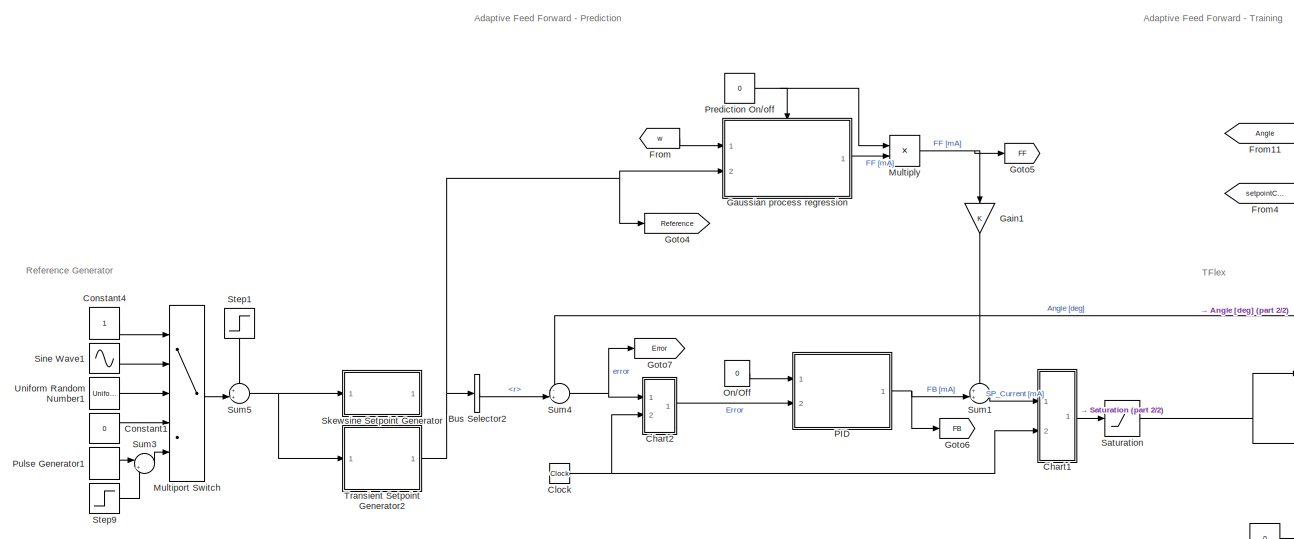
[diagram: root canvas - part 1/2, middle left region]
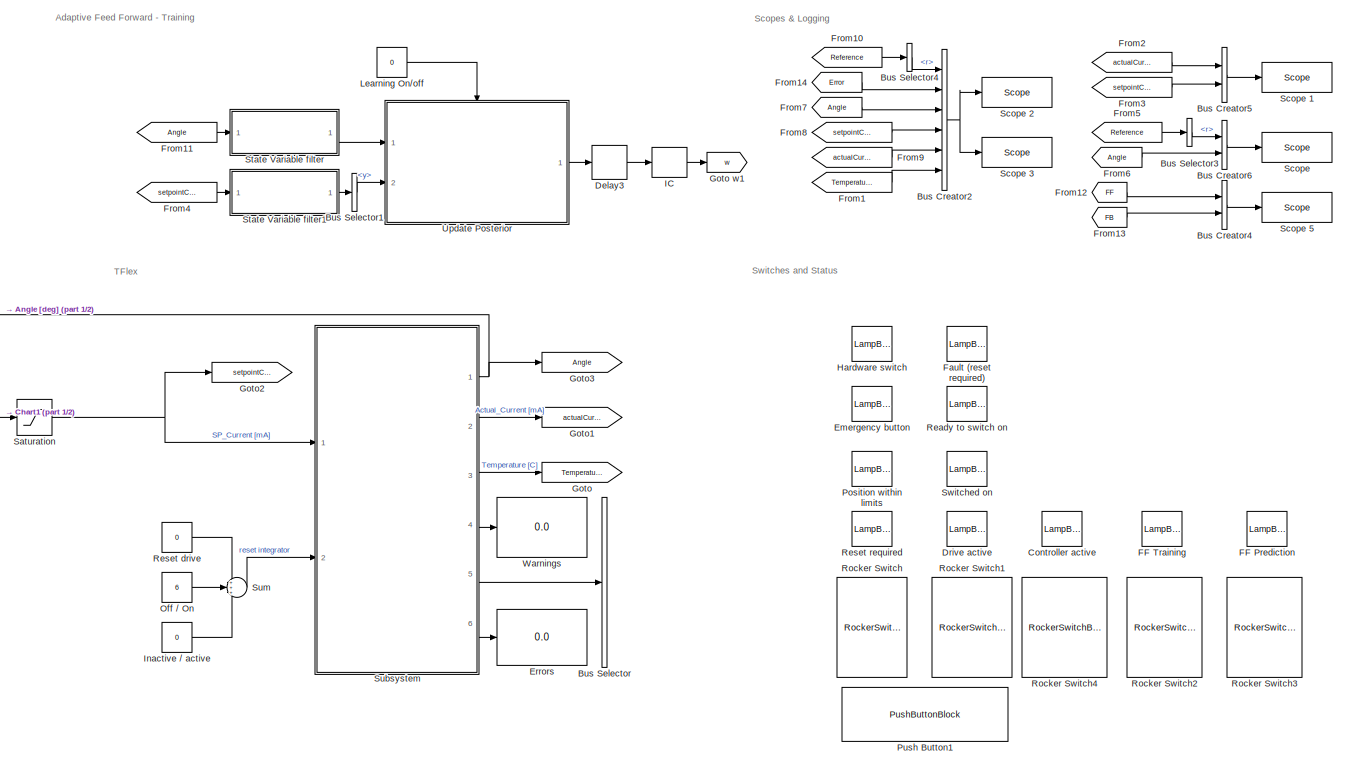
[diagram: root canvas - part 2/2, right side, full height]
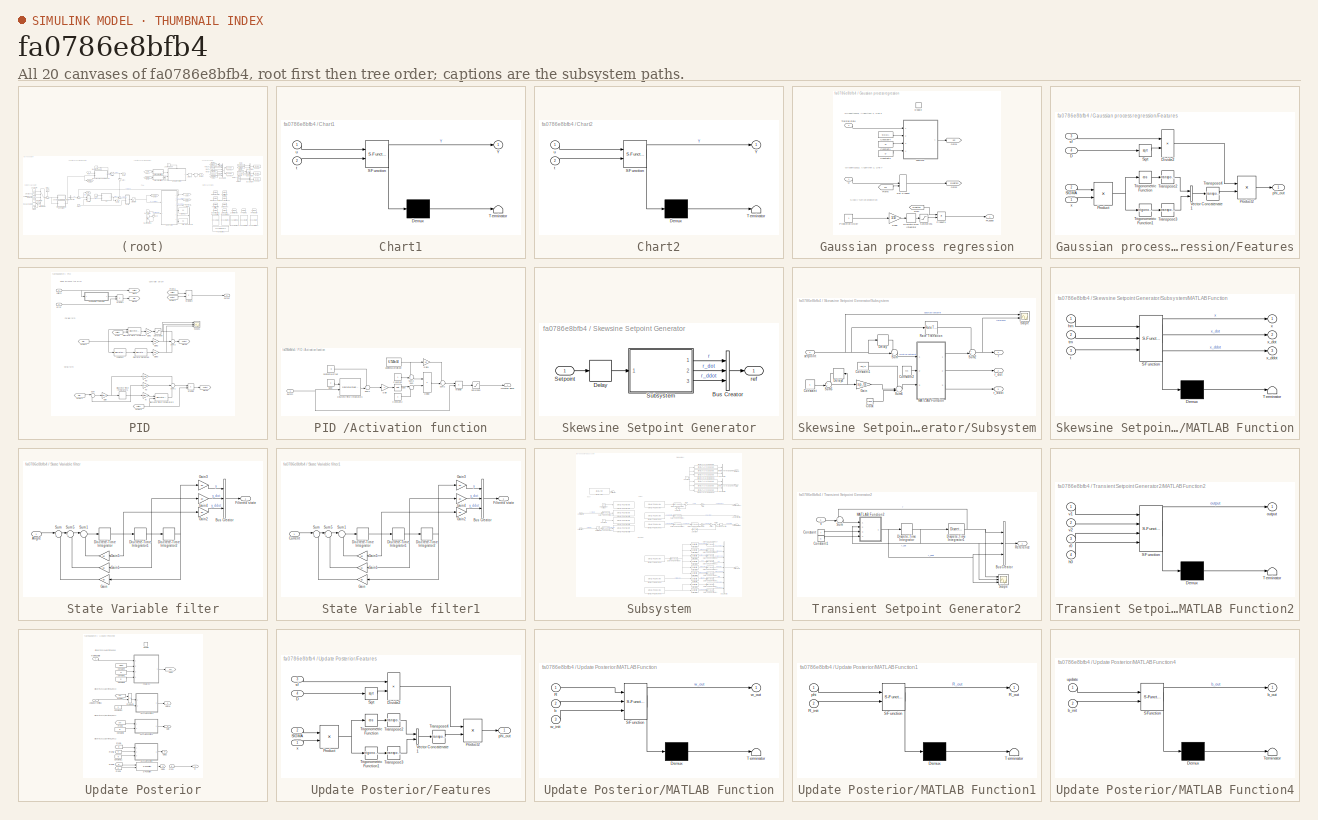
[diagram: thumbnail index - all 20 canvases of the model, root first then tree order]
MODEL slx_fa0786e8bfb4
KIND model
CONFIG AbsTol = auto
CONFIG EnableMultiTasking = on
CONFIG FixedStep = ts
CONFIG InitFcn = Ts = 0.001;
CONFIG MaxStep = auto
CONFIG MinStep = auto
CONFIG PreLoadFcn = Ts = 0.001;
CONFIG RelTol = 1e-3
CONFIG SampleTimeConstraint = Unconstrained
CONFIG Solver = FixedStepDiscrete
CONFIG SolverName = FixedStepDiscrete
CONFIG StartTime = 0.0
CONFIG StopTime = inf
BLOCK [BusCreator] Bus Creator2
  DisplayOption = bar
  InheritFromInputs = on
  Inputs = 6
  Ports = [6, 1]
BLOCK [BusCreator] Bus Creator4
  DisplayOption = bar
  InheritFromInputs = on
  Inputs = 2
  Ports = [2, 1]
BLOCK [BusCreator] Bus Creator5
  DisplayOption = bar
  InheritFromInputs = on
  Inputs = 2
  Ports = [2, 1]
BLOCK [BusCreator] Bus Creator6
  DisplayOption = bar
  InheritFromInputs = on
  Inputs = 2
  Ports = [2, 1]
BLOCK [BusSelector] Bus Selector
  OutputAsBus = off
  OutputSignals = HW enabled,STO selected,in limits,switch on disable,fault,switched on,ready to switch on,operation enable
  Ports = [1, 8]
BLOCK [BusSelector] Bus Selector1
  OutputAsBus = off
  OutputSignals = y
  Ports = [1, 1]
BLOCK [BusSelector] Bus Selector2
  OutputAsBus = off
  OutputSignals = r
  Ports = [1, 1]
BLOCK [BusSelector] Bus Selector3
  OutputAsBus = off
  OutputSignals = r
  Ports = [1, 1]
BLOCK [BusSelector] Bus Selector4
  OutputAsBus = off
  OutputSignals = r
  Ports = [1, 1]
BLOCK [SubSystem] Chart1
  ErrorFcn = Stateflow.Translate.translate
  PermitHierarchicalResolution = ExplicitOnly
  Ports = [2, 1]
  RequestExecContextInheritance = off
  SFBlockType = Chart
  TreatAsAtomicUnit = on
BLOCK [Demux] Chart1/ Demux 
  Outputs = 1
  Ports = [1, 1]
BLOCK [S-Function] Chart1/ SFunction 
  EnableBusSupport = on
  FunctionName = sf_sfun
  PortCounts = [2 2]
  Ports = [2, 2]
  SFcnIsStateOwnerBlock = off
  SFunctionDeploymentMode = off
  Tag = Stateflow S-Function Tflex_PIDv1_ISSGP18a 4
BLOCK [Terminator] Chart1/ Terminator 
BLOCK [Outport] Chart1/Y
  IconDisplay = Port number
BLOCK [Inport] Chart1/t
  IconDisplay = Port number
  Port = 2
BLOCK [Inport] Chart1/u
  IconDisplay = Port number
BLOCK [SubSystem] Chart2
  ErrorFcn = Stateflow.Translate.translate
  PermitHierarchicalResolution = ExplicitOnly
  Ports = [2, 1]
  RequestExecContextInheritance = off
  SFBlockType = Chart
  TreatAsAtomicUnit = on
BLOCK [Demux] Chart2/ Demux 
  Outputs = 1
  Ports = [1, 1]
BLOCK [S-Function] Chart2/ SFunction 
  EnableBusSupport = on
  FunctionName = sf_sfun
  PortCounts = [2 2]
  Ports = [2, 2]
  SFcnIsStateOwnerBlock = off
  SFunctionDeploymentMode = off
  Tag = Stateflow S-Function Tflex_PIDv1_ISSGP18a 1
BLOCK [Terminator] Chart2/ Terminator 
BLOCK [Outport] Chart2/Y
  IconDisplay = Port number
BLOCK [Inport] Chart2/t
  IconDisplay = Port number
  Port = 2
BLOCK [Inport] Chart2/u
  IconDisplay = Port number
BLOCK [Clock] Clock
BLOCK [Constant] Constant1
  SampleTime = sp_ts
  Value = 0
BLOCK [Constant] Constant4
  SampleTime = sp_ts
BLOCK [LampBlock] Controller active
  LabelPosition = Hide
  WebBlockId = 1912
BLOCK [Delay] Delay3
  DelayLength = 1
  InitialCondition = 0
  InputPortMap = u0
  Ports = [1, 1]
BLOCK [LampBlock] Drive active
  WebBlockId = 227
BLOCK [LampBlock] Emergency button
  WebBlockId = 221
BLOCK [Display] Errors
  Decimation = 1
  Ports = [1]
BLOCK [LampBlock] FF Prediction
  LabelPosition = Hide
  WebBlockId = 1916
BLOCK [LampBlock] FF Training
  LabelPosition = Hide
  WebBlockId = 1915
BLOCK [LampBlock] Fault (reset required)
  WebBlockId = 224
BLOCK [From] From
  GotoTag = w
BLOCK [From] From1
  GotoTag = Temperature
BLOCK [From] From10
  GotoTag = Reference
BLOCK [From] From11
  GotoTag = Angle
BLOCK [From] From12
  GotoTag = FF
BLOCK [From] From13
  GotoTag = FB
BLOCK [From] From14
  GotoTag = Error
BLOCK [From] From2
  GotoTag = actualCurrent
BLOCK [From] From3
  GotoTag = setpointCurrent
BLOCK [From] From4
  GotoTag = setpointCurrent
BLOCK [From] From5
  GotoTag = Reference
BLOCK [From] From6
  GotoTag = Angle
BLOCK [From] From7
  GotoTag = Angle
BLOCK [From] From8
  GotoTag = setpointCurrent
BLOCK [From] From9
  GotoTag = actualCurrent
BLOCK [Gain] Gain1
  OutDataTypeStr = Inherit: Inherit via internal rule
  ParamDataTypeStr = Inherit: Inherit via internal rule
  SaturateOnIntegerOverflow = off
BLOCK [SubSystem] Gaussian process regression
  Ports = [2, 1, 1]
  RequestExecContextInheritance = off
BLOCK [Constant] Gaussian process regression/Constant1
  Value = sf
  VectorParams1D = off
BLOCK [Constant] Gaussian process regression/Constant3
  Value = D
  VectorParams1D = off
BLOCK [Constant] Gaussian process regression/Constant4
  Value = SIGMA
  VectorParams1D = off
BLOCK [DiscreteIntegrator] Gaussian process regression/Discrete-Time Integrator
  ICPrevOutput = DiscIntNeverNeededParam
  ICPrevScaledInput = DiscIntNeverNeededParam
  InitialConditionSetting = Auto
  Ports = [1, 1]
  SampleTime = -1
BLOCK [DotProduct] Gaussian process regression/Dot Product
  InputSameDT = off
  OutDataTypeStr = Inherit: Inherit via internal rule
BLOCK [EnablePort] Gaussian process regression/Enable
  Ports = []
  StatesWhenEnabling = reset
BLOCK [Outport] Gaussian process regression/FF_adapt
  IconDisplay = Port number
  SampleTime = ts
BLOCK [SubSystem] Gaussian process regression/Features
  Ports = [4, 1]
  RequestExecContextInheritance = off
BLOCK [Inport] Gaussian process regression/Features/D
  IconDisplay = Port number
  Port = 4
BLOCK [Product] Gaussian process regression/Features/Divide2
  InputSameDT = off
  Inputs = */
  OutDataTypeStr = Inherit: Inherit via internal rule
  Ports = [2, 1]
  RndMeth = Floor
  SaturateOnIntegerOverflow = off
BLOCK [Product] Gaussian process regression/Features/Product
  InputSameDT = off
  Multiplication = Matrix(*)
  OutDataTypeStr = Inherit: Inherit via internal rule
  Ports = [2, 1]
  RndMeth = Floor
  SaturateOnIntegerOverflow = off
BLOCK [Product] Gaussian process regression/Features/Product2
  InputSameDT = off
  OutDataTypeStr = Inherit: Inherit via internal rule
  Ports = [2, 1]
  RndMeth = Floor
  SaturateOnIntegerOverflow = off
BLOCK [Inport] Gaussian process regression/Features/SIGMA
  IconDisplay = Port number
  Port = 2
BLOCK [Sqrt] Gaussian process regression/Features/Sqrt
BLOCK [Math] Gaussian process regression/Features/Transpose2
  Operator = transpose
  Ports = [1, 1]
BLOCK [Math] Gaussian process regression/Features/Transpose3
  Operator = transpose
  Ports = [1, 1]
BLOCK [Math] Gaussian process regression/Features/Transpose4
  Operator = transpose
  Ports = [1, 1]
BLOCK [Trigonometry] Gaussian process regression/Features/Trigonometric Function
  Operator = cos
  Ports = [1, 1]
BLOCK [Trigonometry] Gaussian process regression/Features/Trigonometric Function1
  Ports = [1, 1]
BLOCK [Concatenate] Gaussian process regression/Features/Vector Concatenate1
  Ports = [2, 1]
BLOCK [Outport] Gaussian process regression/Features/phi_out
  IconDisplay = Port number
BLOCK [Inport] Gaussian process regression/Features/sf
  IconDisplay = Port number
  Port = 3
BLOCK [Inport] Gaussian process regression/Features/x
  IconDisplay = Port number
BLOCK [From] Gaussian process regression/From
  GotoTag = prediction
BLOCK [From] Gaussian process regression/From5
  GotoTag = phi
BLOCK [Goto] Gaussian process regression/Goto1
  GotoTag = phi
BLOCK [Goto] Gaussian process regression/Goto2
  GotoTag = prediction
BLOCK [Constant] Gaussian process regression/Prediction On//off
BLOCK [Product] Gaussian process regression/Product1
  InputSameDT = off
  OutDataTypeStr = Inherit: Inherit via internal rule
  Ports = [2, 1]
  RndMeth = Floor
  SaturateOnIntegerOverflow = off
BLOCK [Saturate] Gaussian process regression/Saturation1
  InputPortMap = u0
  LowerLimit = 0
  Ports = [1, 1]
  UpperLimit = 1
BLOCK [Inport] Gaussian process regression/Training state
  IconDisplay = Port number
  Port = 2
BLOCK [Gain] Gaussian process regression/slope
  Gain = 1/10
  OutDataTypeStr = Inherit: Inherit via internal rule
  ParamDataTypeStr = Inherit: Inherit via internal rule
  SaturateOnIntegerOverflow = off
BLOCK [Inport] Gaussian process regression/w
  IconDisplay = Port number
BLOCK [Goto] Goto
  GotoTag = Temperature
BLOCK [Goto] Goto w1
  GotoTag = w
BLOCK [Goto] Goto1
  GotoTag = actualCurrent
BLOCK [Goto] Goto2
  GotoTag = setpointCurrent
BLOCK [Goto] Goto3
  GotoTag = Angle
BLOCK [Goto] Goto4
  GotoTag = Reference
BLOCK [Goto] Goto5
  GotoTag = FF
BLOCK [Goto] Goto6
  GotoTag = FB
BLOCK [Goto] Goto7
  GotoTag = Error
BLOCK [LampBlock] Hardware switch
  WebBlockId = 218
BLOCK [InitialCondition] IC
  Value = w
BLOCK [Constant] Inactive // active
  Value = 0
BLOCK [Constant] Learning On//off
  Value = 0
BLOCK [Product] Multiply
  InputSameDT = off
  OutDataTypeStr = Inherit: Inherit via internal rule
  Ports = [2, 1]
  RndMeth = Floor
  SaturateOnIntegerOverflow = off
BLOCK [MultiPortSwitch] Multiport Switch
  InputSameDT = off
  Inputs = 4
  Ports = [5, 1]
  SaturateOnIntegerOverflow = off
BLOCK [Constant] Off // On
  Value = 6
BLOCK [Constant] On//Off
  Value = 0
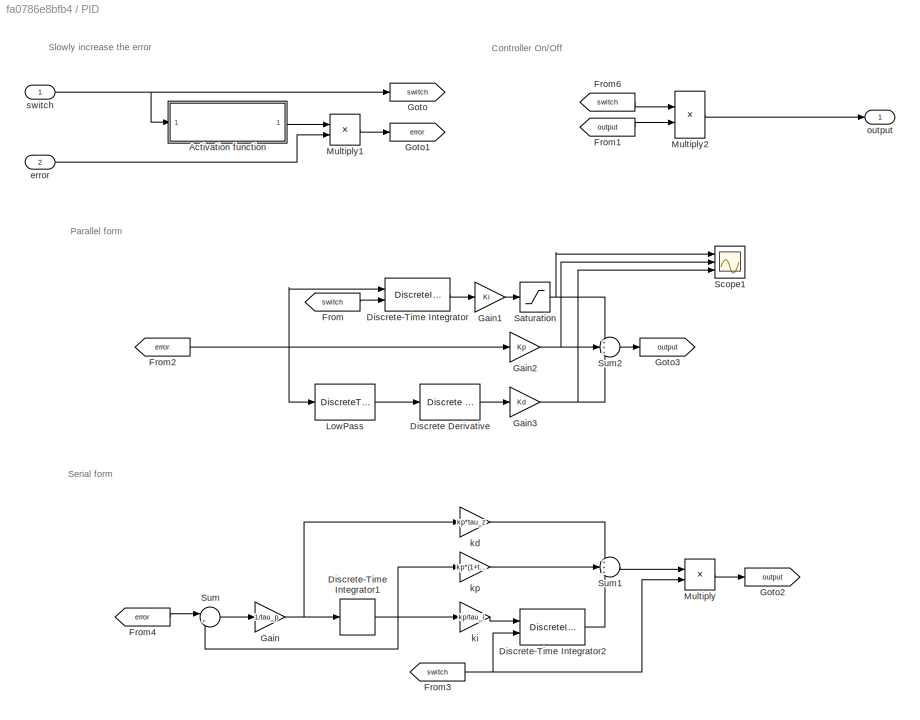
BLOCK [SubSystem] PID 
  Ports = [2, 1]
  RequestExecContextInheritance = off
BLOCK [SubSystem] PID /Activation function
  Ports = [1, 1]
  RequestExecContextInheritance = off
BLOCK [Outport] PID /Activation function/Activation Signal
  IconDisplay = Port number
BLOCK [Constant] PID /Activation function/Constant
BLOCK [Constant] PID /Activation function/Constant2
BLOCK [DiscreteIntegrator] PID /Activation function/Discrete-Time Integrator3
  ExternalReset = rising
  ICPrevOutput = DiscIntNeverNeededParam
  ICPrevScaledInput = DiscIntNeverNeededParam
  InitialConditionSetting = Auto
  IntegratorMethod = Integration: Trapezoidal
  LowerSaturationLimit = 0
  Ports = [2, 1]
  SampleTime = -1
  UpperSaturationLimit = 1
BLOCK [Product] PID /Activation function/Divide
  InputSameDT = off
  Inputs = */
  OutDataTypeStr = Inherit: Inherit via internal rule
  Ports = [2, 1]
  RndMeth = Floor
  SaturateOnIntegerOverflow = off
BLOCK [Math] PID /Activation function/Exp
  Ports = [1, 1]
BLOCK [Gain] PID /Activation function/Gain
  Gain = -1
  OutDataTypeStr = Inherit: Inherit via internal rule
  ParamDataTypeStr = Inherit: Inherit via internal rule
  SaturateOnIntegerOverflow = off
BLOCK [Gain] PID /Activation function/Gain1
  Gain = 1/2
  OutDataTypeStr = Inherit: Inherit via internal rule
  ParamDataTypeStr = Inherit: Inherit via internal rule
  SaturateOnIntegerOverflow = off
BLOCK [Product] PID /Activation function/Multiply
  InputSameDT = off
  OutDataTypeStr = Inherit: Inherit via internal rule
  Ports = [2, 1]
  RndMeth = Floor
  SaturateOnIntegerOverflow = off
BLOCK [Saturate] PID /Activation function/Saturation
  InputPortMap = u0
  LowerLimit = 0
  Ports = [1, 1]
  UpperLimit = 1
BLOCK [Sum] PID /Activation function/Sum
  IconShape = round
  InputSameDT = off
  Inputs = |++
  OutDataTypeStr = Inherit: Inherit via internal rule
  Ports = [2, 1]
  SaturateOnIntegerOverflow = off
BLOCK [Sum] PID /Activation function/Sum1
  IconShape = round
  InputSameDT = off
  Inputs = ++|
  OutDataTypeStr = Inherit: Inherit via internal rule
  Ports = [2, 1]
  SaturateOnIntegerOverflow = off
BLOCK [Sum] PID /Activation function/Sum2
  IconShape = round
  InputSameDT = off
  Inputs = -+|
  OutDataTypeStr = Inherit: Inherit via internal rule
  Ports = [2, 1]
  SaturateOnIntegerOverflow = off
BLOCK [Sum] PID /Activation function/Sum3
  IconShape = round
  InputSameDT = off
  Inputs = ++|
  OutDataTypeStr = Inherit: Inherit via internal rule
  Ports = [2, 1]
  SaturateOnIntegerOverflow = off
BLOCK [Inport] PID /Activation function/Switch
  IconDisplay = Port number
BLOCK [Constant] PID /Activation function/additional amplitude
  Value = 6.7140e-04
BLOCK [Constant] PID /Activation function/horizontal offset
  Value = -8
BLOCK [Constant] PID /Activation function/slope
  Value = 2
BLOCK [Reference] PID /Discrete Derivative  REF=simulink/Discrete/Discrete Derivative
  Ports = [1, 1]
  SourceBlock = simulink/Discrete/Discrete Derivative
  SourceProductBaseCode = SL
  SourceProductName = Simulink
  SourceType = Discrete Derivative
BLOCK [DiscreteIntegrator] PID /Discrete-Time Integrator
  ExternalReset = either
  ICPrevOutput = DiscIntNeverNeededParam
  ICPrevScaledInput = DiscIntNeverNeededParam
  InitialConditionSetting = Auto
  IntegratorMethod = Integration: Trapezoidal
  LimitOutput = on
  LowerSaturationLimit = I_limit_min
  Ports = [2, 1]
  SampleTime = ts
  UpperSaturationLimit = I_limit_max
BLOCK [DiscreteIntegrator] PID /Discrete-Time Integrator1
  Commented = on
  ICPrevOutput = DiscIntNeverNeededParam
  ICPrevScaledInput = DiscIntNeverNeededParam
  InitialConditionSetting = Auto
  Ports = [1, 1]
  SampleTime = -1
BLOCK [DiscreteIntegrator] PID /Discrete-Time Integrator2
  Commented = on
  ExternalReset = rising
  ICPrevOutput = DiscIntNeverNeededParam
  ICPrevScaledInput = DiscIntNeverNeededParam
  InitialConditionSetting = Auto
  IntegratorMethod = Integration: Trapezoidal
  LimitOutput = on
  LowerSaturationLimit = I_limit_min
  Ports = [2, 1]
  SampleTime = ts
  UpperSaturationLimit = I_limit_max
BLOCK [From] PID /From
  GotoTag = switch
BLOCK [From] PID /From1
  GotoTag = output
BLOCK [From] PID /From2
  GotoTag = error
BLOCK [From] PID /From3
  Commented = on
  GotoTag = switch
BLOCK [From] PID /From4
  Commented = on
  GotoTag = error
BLOCK [From] PID /From6
  GotoTag = switch
BLOCK [Gain] PID /Gain
  Commented = on
  Gain = 1/tau_p
  OutDataTypeStr = Inherit: Inherit via internal rule
  ParamDataTypeStr = Inherit: Inherit via internal rule
  SaturateOnIntegerOverflow = off
BLOCK [Gain] PID /Gain1
  Gain = Ki
  OutDataTypeStr = Inherit: Inherit via internal rule
  ParamDataTypeStr = Inherit: Inherit via internal rule
  SaturateOnIntegerOverflow = off
BLOCK [Gain] PID /Gain2
  Gain = Kp
  OutDataTypeStr = Inherit: Inherit via internal rule
  ParamDataTypeStr = Inherit: Inherit via internal rule
  SaturateOnIntegerOverflow = off
BLOCK [Gain] PID /Gain3
  Gain = Kd
  OutDataTypeStr = Inherit: Inherit via internal rule
  ParamDataTypeStr = Inherit: Inherit via internal rule
  SaturateOnIntegerOverflow = off
BLOCK [Goto] PID /Goto
  GotoTag = switch
BLOCK [Goto] PID /Goto1
  GotoTag = error
BLOCK [Goto] PID /Goto2
  Commented = on
  GotoTag = output
BLOCK [Goto] PID /Goto3
  GotoTag = output
BLOCK [DiscreteTransferFcn] PID /LowPass
  Denominator = LPden
  InputPortMap = u0
  Numerator = LPnum
  Ports = [1, 1]
BLOCK [Product] PID /Multiply
  Commented = on
  InputSameDT = off
  OutDataTypeStr = Inherit: Inherit via internal rule
  Ports = [2, 1]
  RndMeth = Floor
  SaturateOnIntegerOverflow = off
BLOCK [Product] PID /Multiply1
  InputSameDT = off
  OutDataTypeStr = Inherit: Inherit via internal rule
  Ports = [2, 1]
  RndMeth = Floor
  SaturateOnIntegerOverflow = off
BLOCK [Product] PID /Multiply2
  InputSameDT = off
  OutDataTypeStr = Inherit: Inherit via internal rule
  Ports = [2, 1]
  RndMeth = Floor
  SaturateOnIntegerOverflow = off
BLOCK [Saturate] PID /Saturation
  InputPortMap = u0
  LowerLimit = I_limit_min
  Ports = [1, 1]
  UpperLimit = I_limit_max
BLOCK [Scope] PID /Scope1
  Floating = off
  NumInputPorts = 3
  Ports = [3]
  ScopeSpecificationString = Simulink.scopes.TimeScopeBlockCfg('CurrentConfiguration', extmgr.ConfigurationSet(extmgr.Configuration('Core','General UI',true),extmgr.Configuration('Core','Source UI',true),extmgr.Configuration('Sources','WiredSimulink',true,'DataLoggingVariableName','ScopeData2'),extmgr.Configuration('Visuals','Time Domain',true,'SerializedDisplays',{struct('MinYLimReal','-60.43114','MaxYLimReal','68.46487','YL...<+1397ch>
BLOCK [Sum] PID /Sum
  Commented = on
  IconShape = round
  InputSameDT = off
  Inputs = |+-
  OutDataTypeStr = Inherit: Inherit via internal rule
  Ports = [2, 1]
  SaturateOnIntegerOverflow = off
BLOCK [Sum] PID /Sum1
  Commented = on
  IconShape = round
  InputSameDT = off
  Inputs = +++
  OutDataTypeStr = Inherit: Inherit via internal rule
  Ports = [3, 1]
  SaturateOnIntegerOverflow = off
BLOCK [Sum] PID /Sum2
  IconShape = round
  InputSameDT = off
  Inputs = +++
  OutDataTypeStr = Inherit: Inherit via internal rule
  Ports = [3, 1]
  SaturateOnIntegerOverflow = off
BLOCK [Inport] PID /error
  IconDisplay = Port number
  Port = 2
BLOCK [Gain] PID /kd
  Commented = on
  Gain = kp*tau_z
  OutDataTypeStr = Inherit: Inherit via internal rule
  ParamDataTypeStr = Inherit: Inherit via internal rule
  SaturateOnIntegerOverflow = off
BLOCK [Gain] PID /ki
  Commented = on
  Gain = kp/tau_i
  OutDataTypeStr = Inherit: Inherit via internal rule
  ParamDataTypeStr = Inherit: Inherit via internal rule
  SaturateOnIntegerOverflow = off
BLOCK [Gain] PID /kp
  Commented = on
  Gain = kp*(1+tau_z/tau_i)
  OutDataTypeStr = Inherit: Inherit via internal rule
  ParamDataTypeStr = Inherit: Inherit via internal rule
  SaturateOnIntegerOverflow = off
BLOCK [Outport] PID /output
  IconDisplay = Port number
BLOCK [Inport] PID /switch
  IconDisplay = Port number
  SampleTime = ts
BLOCK [LampBlock] Position within limits
  WebBlockId = 222
BLOCK [Constant] Prediction On//off
  SampleTime = ts
  Value = 0
BLOCK [DiscretePulseGenerator] Pulse Generator1
  Amplitude = 46
  Ports = [0, 1]
  SampleTime = sp_ts
BLOCK [PushButtonBlock] Push Button1
  ButtonText = Reset Drive [TURN OFF FIRST]
  OnValue = 128
  WebBlockId = 1977
BLOCK [LampBlock] Ready to switch on
  WebBlockId = 226
BLOCK [Constant] Reset drive
  Value = 0
BLOCK [LampBlock] Reset required
  WebBlockId = 223
BLOCK [RockerSwitchBlock] Rocker Switch
  LabelPosition = Hide
  WebBlockId = 231
BLOCK [RockerSwitchBlock] Rocker Switch1
  LabelPosition = Hide
  WebBlockId = 232
BLOCK [RockerSwitchBlock] Rocker Switch2
  LabelPosition = Hide
  WebBlockId = 965
BLOCK [RockerSwitchBlock] Rocker Switch3
  LabelPosition = Hide
  WebBlockId = 969
BLOCK [RockerSwitchBlock] Rocker Switch4
  LabelPosition = Hide
  WebBlockId = 1848
BLOCK [Saturate] Saturation
  InputPortMap = u0
  LowerLimit = -250/2
  Ports = [1, 1]
  UpperLimit = 750
BLOCK [Reference] Scope   REF=slrtlib/Displays and
Logging/Scope 
  Ports = [1]
  SourceBlock = slrtlib/Displays and\nLogging/Scope
  SourceProductBaseCode = XP
  SourceProductName = Simulink Real-Time
  SourceType = xpcscopeblock
BLOCK [Reference] Scope 1  REF=slrtlib/Displays and
Logging/Scope 
  Ports = [1]
  SourceBlock = slrtlib/Displays and\nLogging/Scope
  SourceProductBaseCode = XP
  SourceProductName = Simulink Real-Time
  SourceType = xpcscopeblock
BLOCK [Reference] Scope 2  REF=slrtlib/Displays and
Logging/Scope 
  Ports = [1]
  SourceBlock = slrtlib/Displays and\nLogging/Scope
  SourceProductBaseCode = XP
  SourceProductName = Simulink Real-Time
  SourceType = xpcscopeblock
BLOCK [Reference] Scope 3  REF=slrtlib/Displays and
Logging/Scope 
  Ports = [1]
  SourceBlock = slrtlib/Displays and\nLogging/Scope
  SourceProductBaseCode = XP
  SourceProductName = Simulink Real-Time
  SourceType = xpcscopeblock
BLOCK [Reference] Scope 5  REF=slrtlib/Displays and
Logging/Scope 
  Ports = [1]
  SourceBlock = slrtlib/Displays and\nLogging/Scope
  SourceProductBaseCode = XP
  SourceProductName = Simulink Real-Time
  SourceType = xpcscopeblock
BLOCK [Sin] Sine Wave1
  Amplitude = 15
  Frequency = 2*pi*2
  Ports = [0, 1]
  SampleTime = 0
BLOCK [SubSystem] Skewsine Setpoint Generator
  Commented = on
  Ports = [1, 1]
  RequestExecContextInheritance = off
BLOCK [BusCreator] Skewsine Setpoint Generator/Bus Creator
  DisplayOption = bar
  InheritFromInputs = on
  Inputs = 3
  Ports = [3, 1]
BLOCK [Delay] Skewsine Setpoint Generator/Delay
  Commented = through
  DelayLength = 1
  InitialCondition = 0
  InputPortMap = u0
  Ports = [1, 1]
BLOCK [Inport] Skewsine Setpoint Generator/Setpoint
  IconDisplay = Port number
BLOCK [SubSystem] Skewsine Setpoint Generator/Subsystem
  Ports = [1, 3]
  RequestExecContextInheritance = off
BLOCK [Clock] Skewsine Setpoint Generator/Subsystem/Clock
  Decimation = 100
BLOCK [Constant] Skewsine Setpoint Generator/Subsystem/Constant
  SampleTime = sp_ts
BLOCK [Constant] Skewsine Setpoint Generator/Subsystem/Constant1
  SampleTime = sp_ts
  Value = -sp_ts
BLOCK [Constant] Skewsine Setpoint Generator/Subsystem/Constant2
  SampleTime = sp_ts
  Value = tm
BLOCK [Delay] Skewsine Setpoint Generator/Subsystem/Delay
  DelayLength = 1
  InitialCondition = 0
  InputPortMap = u0
  Ports = [1, 1]
  SampleTime = sp_ts
BLOCK [Delay] Skewsine Setpoint Generator/Subsystem/Delay4
  DelayLength = 1
  InitialCondition = 0
  InputPortMap = u0
  Ports = [1, 1]
  SampleTime = sp_ts
BLOCK [Gain] Skewsine Setpoint Generator/Subsystem/Gain
  Gain = sp_ts
  OutDataTypeStr = Inherit: Inherit via internal rule
  ParamDataTypeStr = Inherit: Inherit via internal rule
  SaturateOnIntegerOverflow = off
BLOCK [SubSystem] Skewsine Setpoint Generator/Subsystem/MATLAB Function
  ErrorFcn = Stateflow.Translate.translate
  PermitHierarchicalResolution = ExplicitOnly
  Ports = [3, 3]
  RequestExecContextInheritance = off
  SFBlockType = MATLAB Function
  TreatAsAtomicUnit = on
BLOCK [Demux] Skewsine Setpoint Generator/Subsystem/MATLAB Function/ Demux 
  Outputs = 1
  Ports = [1, 1]
BLOCK [S-Function] Skewsine Setpoint Generator/Subsystem/MATLAB Function/ SFunction 
  EnableBusSupport = on
  FunctionName = sf_sfun
  PortCounts = [3 4]
  Ports = [3, 4]
  SFcnIsStateOwnerBlock = off
  SFunctionDeploymentMode = off
  Tag = Stateflow S-Function Tflex_PIDv1_ISSGP18a 3
BLOCK [Terminator] Skewsine Setpoint Generator/Subsystem/MATLAB Function/ Terminator 
BLOCK [Inport] Skewsine Setpoint Generator/Subsystem/MATLAB Function/hm
  IconDisplay = Port number
BLOCK [Inport] Skewsine Setpoint Generator/Subsystem/MATLAB Function/t
  IconDisplay = Port number
  Port = 3
BLOCK [Inport] Skewsine Setpoint Generator/Subsystem/MATLAB Function/tm
  IconDisplay = Port number
  Port = 2
BLOCK [Outport] Skewsine Setpoint Generator/Subsystem/MATLAB Function/x
  IconDisplay = Port number
BLOCK [Outport] Skewsine Setpoint Generator/Subsystem/MATLAB Function/x_ddot
  IconDisplay = Port number
  Port = 3
BLOCK [Outport] Skewsine Setpoint Generator/Subsystem/MATLAB Function/x_dot
  IconDisplay = Port number
  Port = 2
BLOCK [RateTransition] Skewsine Setpoint Generator/Subsystem/Rate Transition
  OutPortSampleTime = ts
BLOCK [Scope] Skewsine Setpoint Generator/Subsystem/Scope
  Floating = off
  NumInputPorts = 2
  Ports = [2]
  ScopeSpecificationString = Simulink.scopes.TimeScopeBlockCfg('CurrentConfiguration', extmgr.ConfigurationSet(extmgr.Configuration('Core','General UI',true),extmgr.Configuration('Core','Source UI',true),extmgr.Configuration('Sources','WiredSimulink',true,'DataLoggingVariableName','ScopeData2'),extmgr.Configuration('Visuals','Time Domain',true,'SerializedDisplays',{struct('MinYLimReal','-26.98733','MaxYLimReal','28.29894','YL...<+1450ch>
BLOCK [Sum] Skewsine Setpoint Generator/Subsystem/Sum
  IconShape = round
  InputSameDT = off
  Inputs = -+|
  OutDataTypeStr = Inherit: Inherit via internal rule
  Ports = [2, 1]
  SaturateOnIntegerOverflow = off
BLOCK [Sum] Skewsine Setpoint Generator/Subsystem/Sum2
  IconShape = round
  InputSameDT = off
  Inputs = ++|
  OutDataTypeStr = Inherit: Inherit via internal rule
  Ports = [2, 1]
  SaturateOnIntegerOverflow = off
BLOCK [Sum] Skewsine Setpoint Generator/Subsystem/Sum5
  IconShape = round
  InputSameDT = off
  Inputs = ++|
  OutDataTypeStr = Inherit: Inherit via internal rule
  Ports = [2, 1]
  SaturateOnIntegerOverflow = off
BLOCK [Sum] Skewsine Setpoint Generator/Subsystem/Sum6
  IconShape = round
  InputSameDT = off
  Inputs = --+|
  OutDataTypeStr = Inherit: Inherit via internal rule
  Ports = [3, 1]
  SaturateOnIntegerOverflow = off
BLOCK [Outport] Skewsine Setpoint Generator/Subsystem/r
  IconDisplay = Port number
BLOCK [Outport] Skewsine Setpoint Generator/Subsystem/r_ddot
  IconDisplay = Port number
  Port = 3
BLOCK [Outport] Skewsine Setpoint Generator/Subsystem/r_dot
  IconDisplay = Port number
  Port = 2
BLOCK [Inport] Skewsine Setpoint Generator/Subsystem/setpoint
  IconDisplay = Port number
BLOCK [Outport] Skewsine Setpoint Generator/ref
  IconDisplay = Port number
BLOCK [SubSystem] State Variable filter
  Ports = [1, 1]
  RequestExecContextInheritance = off
BLOCK [Inport] State Variable filter/Angle
  IconDisplay = Port number
BLOCK [BusCreator] State Variable filter/Bus Creator
  DisplayOption = bar
  InheritFromInputs = on
  Inputs = 3
  Ports = [3, 1]
BLOCK [DiscreteIntegrator] State Variable filter/Discrete-Time Integrator
  ICPrevOutput = DiscIntNeverNeededParam
  ICPrevScaledInput = DiscIntNeverNeededParam
  InitialConditionSetting = Auto
  Ports = [1, 1]
  SampleTime = -1
BLOCK [DiscreteIntegrator] State Variable filter/Discrete-Time Integrator1
  ICPrevOutput = DiscIntNeverNeededParam
  ICPrevScaledInput = DiscIntNeverNeededParam
  InitialConditionSetting = Auto
  Ports = [1, 1]
  SampleTime = -1
BLOCK [DiscreteIntegrator] State Variable filter/Discrete-Time Integrator2
  ICPrevOutput = DiscIntNeverNeededParam
  ICPrevScaledInput = DiscIntNeverNeededParam
  InitialConditionSetting = Auto
  Ports = [1, 1]
  SampleTime = -1
BLOCK [Outport] State Variable filter/Filtered state
  IconDisplay = Port number
BLOCK [Gain] State Variable filter/Gain
  Gain = a0
  OutDataTypeStr = Inherit: Inherit via internal rule
  ParamDataTypeStr = Inherit: Inherit via internal rule
  SaturateOnIntegerOverflow = off
BLOCK [Gain] State Variable filter/Gain1
  Gain = a1
  OutDataTypeStr = Inherit: Inherit via internal rule
  ParamDataTypeStr = Inherit: Inherit via internal rule
  SaturateOnIntegerOverflow = off
BLOCK [Gain] State Variable filter/Gain2
  Gain = a0
  OutDataTypeStr = Inherit: Inherit via internal rule
  ParamDataTypeStr = Inherit: Inherit via internal rule
  SaturateOnIntegerOverflow = off
BLOCK [Gain] State Variable filter/Gain3
  Gain = a0
  OutDataTypeStr = Inherit: Inherit via internal rule
  ParamDataTypeStr = Inherit: Inherit via internal rule
  SaturateOnIntegerOverflow = off
BLOCK [Gain] State Variable filter/Gain4
  Gain = a0
  OutDataTypeStr = Inherit: Inherit via internal rule
  ParamDataTypeStr = Inherit: Inherit via internal rule
  SaturateOnIntegerOverflow = off
BLOCK [Gain] State Variable filter/Gain5
  Gain = a2
  OutDataTypeStr = Inherit: Inherit via internal rule
  ParamDataTypeStr = Inherit: Inherit via internal rule
  SaturateOnIntegerOverflow = off
BLOCK [Sum] State Variable filter/Sum
  IconShape = round
  InputSameDT = off
  Inputs = |+-
  OutDataTypeStr = Inherit: Inherit via internal rule
  Ports = [2, 1]
  SaturateOnIntegerOverflow = off
BLOCK [Sum] State Variable filter/Sum1
  IconShape = round
  InputSameDT = off
  Inputs = |+-
  OutDataTypeStr = Inherit: Inherit via internal rule
  Ports = [2, 1]
  SaturateOnIntegerOverflow = off
BLOCK [Sum] State Variable filter/Sum5
  IconShape = round
  InputSameDT = off
  Inputs = |+-
  OutDataTypeStr = Inherit: Inherit via internal rule
  Ports = [2, 1]
  SaturateOnIntegerOverflow = off
BLOCK [SubSystem] State Variable filter1
  Ports = [1, 1]
  RequestExecContextInheritance = off
BLOCK [BusCreator] State Variable filter1/Bus Creator
  DisplayOption = bar
  InheritFromInputs = on
  Inputs = 3
  Ports = [3, 1]
BLOCK [Inport] State Variable filter1/Current
  IconDisplay = Port number
BLOCK [DiscreteIntegrator] State Variable filter1/Discrete-Time Integrator
  ICPrevOutput = DiscIntNeverNeededParam
  ICPrevScaledInput = DiscIntNeverNeededParam
  InitialConditionSetting = Auto
  Ports = [1, 1]
  SampleTime = -1
BLOCK [DiscreteIntegrator] State Variable filter1/Discrete-Time Integrator1
  ICPrevOutput = DiscIntNeverNeededParam
  ICPrevScaledInput = DiscIntNeverNeededParam
  InitialConditionSetting = Auto
  Ports = [1, 1]
  SampleTime = -1
BLOCK [DiscreteIntegrator] State Variable filter1/Discrete-Time Integrator2
  ICPrevOutput = DiscIntNeverNeededParam
  ICPrevScaledInput = DiscIntNeverNeededParam
  InitialConditionSetting = Auto
  Ports = [1, 1]
  SampleTime = -1
BLOCK [Outport] State Variable filter1/Filtered state
  IconDisplay = Port number
BLOCK [Gain] State Variable filter1/Gain
  Gain = a0
  OutDataTypeStr = Inherit: Inherit via internal rule
  ParamDataTypeStr = Inherit: Inherit via internal rule
  SaturateOnIntegerOverflow = off
BLOCK [Gain] State Variable filter1/Gain1
  Gain = a1
  OutDataTypeStr = Inherit: Inherit via internal rule
  ParamDataTypeStr = Inherit: Inherit via internal rule
  SaturateOnIntegerOverflow = off
BLOCK [Gain] State Variable filter1/Gain2
  Gain = a0
  OutDataTypeStr = Inherit: Inherit via internal rule
  ParamDataTypeStr = Inherit: Inherit via internal rule
  SaturateOnIntegerOverflow = off
BLOCK [Gain] State Variable filter1/Gain3
  Gain = a0
  OutDataTypeStr = Inherit: Inherit via internal rule
  ParamDataTypeStr = Inherit: Inherit via internal rule
  SaturateOnIntegerOverflow = off
BLOCK [Gain] State Variable filter1/Gain4
  Gain = a0
  OutDataTypeStr = Inherit: Inherit via internal rule
  ParamDataTypeStr = Inherit: Inherit via internal rule
  SaturateOnIntegerOverflow = off
BLOCK [Gain] State Variable filter1/Gain5
  Gain = a2
  OutDataTypeStr = Inherit: Inherit via internal rule
  ParamDataTypeStr = Inherit: Inherit via internal rule
  SaturateOnIntegerOverflow = off
BLOCK [Sum] State Variable filter1/Sum
  IconShape = round
  InputSameDT = off
  Inputs = |+-
  OutDataTypeStr = Inherit: Inherit via internal rule
  Ports = [2, 1]
  SaturateOnIntegerOverflow = off
BLOCK [Sum] State Variable filter1/Sum1
  IconShape = round
  InputSameDT = off
  Inputs = |+-
  OutDataTypeStr = Inherit: Inherit via internal rule
  Ports = [2, 1]
  SaturateOnIntegerOverflow = off
BLOCK [Sum] State Variable filter1/Sum5
  IconShape = round
  InputSameDT = off
  Inputs = |+-
  OutDataTypeStr = Inherit: Inherit via internal rule
  Ports = [2, 1]
  SaturateOnIntegerOverflow = off
BLOCK [Step] Step1
  After = 0
  Before = -23
  SampleTime = 0
  Time = 20
BLOCK [Step] Step9
  After = -24
  SampleTime = sp_ts
  Time = 0
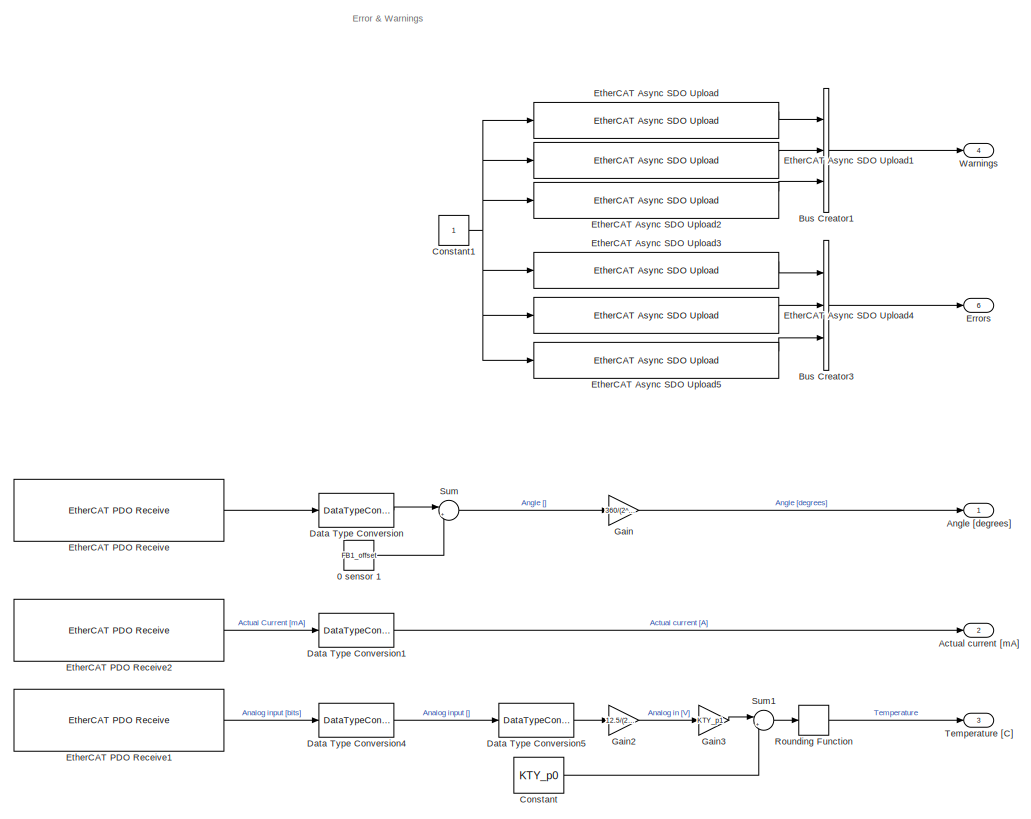
[diagram: Subsystem - part 1/3, top right region]
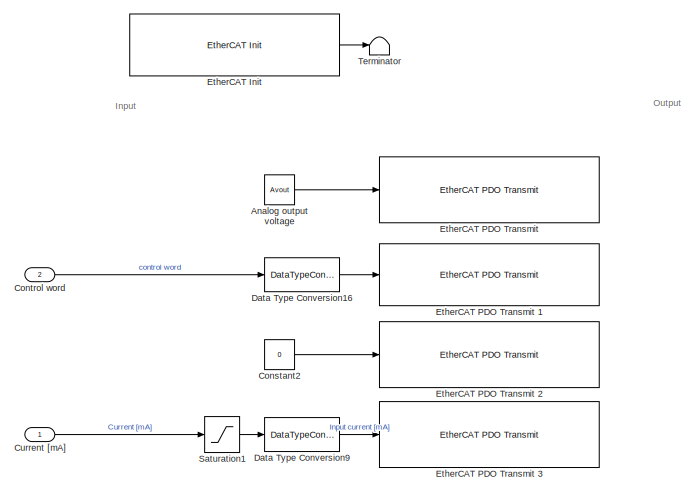
[diagram: Subsystem - part 2/3, middle left region]
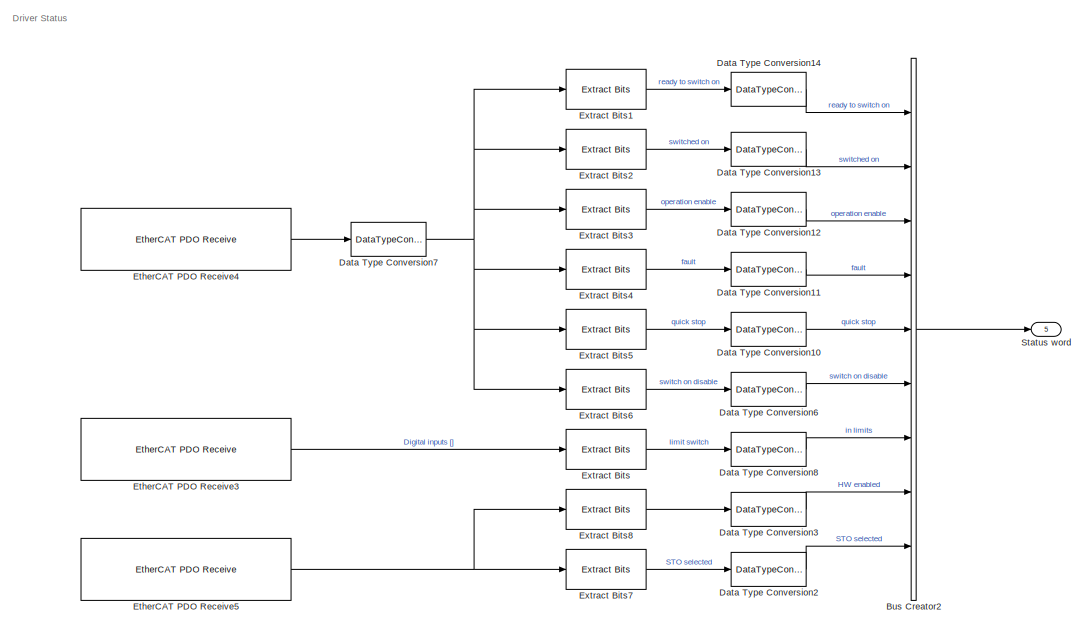
[diagram: Subsystem - part 3/3, bottom right region]
BLOCK [SubSystem] Subsystem
  Ports = [2, 6]
  RequestExecContextInheritance = off
BLOCK [Constant] Subsystem/0 sensor 1
  Value = FB1_offset
BLOCK [Outport] Subsystem/Actual current [mA]
  IconDisplay = Port number
  Port = 2
BLOCK [Constant] Subsystem/Analog output voltage
  OutDataTypeStr = int16
  Value = Avout
BLOCK [Outport] Subsystem/Angle [degrees]
  IconDisplay = Port number
BLOCK [BusCreator] Subsystem/Bus Creator1
  DisplayOption = bar
  InheritFromInputs = on
  Inputs = 3
  Ports = [3, 1]
BLOCK [BusCreator] Subsystem/Bus Creator2
  DisplayOption = bar
  InheritFromInputs = on
  Inputs = 9
  Ports = [9, 1]
BLOCK [BusCreator] Subsystem/Bus Creator3
  DisplayOption = bar
  InheritFromInputs = on
  Inputs = 3
  Ports = [3, 1]
BLOCK [Constant] Subsystem/Constant
  Value = KTY_p0
BLOCK [Constant] Subsystem/Constant1
  OutDataTypeStr = int32
BLOCK [Constant] Subsystem/Constant2
  OutDataTypeStr = uint32
  Value = 0
BLOCK [Inport] Subsystem/Control word
  IconDisplay = Port number
  Port = 2
BLOCK [Inport] Subsystem/Current [mA]
  IconDisplay = Port number
BLOCK [DataTypeConversion] Subsystem/Data Type Conversion
  OutDataTypeStr = double
  RndMeth = Floor
  SaturateOnIntegerOverflow = off
BLOCK [DataTypeConversion] Subsystem/Data Type Conversion1
  OutDataTypeStr = double
  RndMeth = Floor
  SaturateOnIntegerOverflow = off
BLOCK [DataTypeConversion] Subsystem/Data Type Conversion10
  OutDataTypeStr = boolean
  RndMeth = Floor
  SaturateOnIntegerOverflow = off
BLOCK [DataTypeConversion] Subsystem/Data Type Conversion11
  OutDataTypeStr = boolean
  RndMeth = Floor
  SaturateOnIntegerOverflow = off
BLOCK [DataTypeConversion] Subsystem/Data Type Conversion12
  OutDataTypeStr = boolean
  RndMeth = Floor
  SaturateOnIntegerOverflow = off
BLOCK [DataTypeConversion] Subsystem/Data Type Conversion13
  OutDataTypeStr = boolean
  RndMeth = Floor
  SaturateOnIntegerOverflow = off
BLOCK [DataTypeConversion] Subsystem/Data Type Conversion14
  OutDataTypeStr = boolean
  RndMeth = Floor
  SaturateOnIntegerOverflow = off
BLOCK [DataTypeConversion] Subsystem/Data Type Conversion16
  OutDataTypeStr = uint16
  RndMeth = Floor
  SaturateOnIntegerOverflow = off
BLOCK [DataTypeConversion] Subsystem/Data Type Conversion2
  OutDataTypeStr = boolean
  RndMeth = Floor
  SaturateOnIntegerOverflow = off
BLOCK [DataTypeConversion] Subsystem/Data Type Conversion3
  OutDataTypeStr = boolean
  RndMeth = Floor
  SaturateOnIntegerOverflow = off
BLOCK [DataTypeConversion] Subsystem/Data Type Conversion4
  OutDataTypeStr = int32
  RndMeth = Floor
  SaturateOnIntegerOverflow = off
BLOCK [DataTypeConversion] Subsystem/Data Type Conversion5
  OutDataTypeStr = double
  RndMeth = Floor
  SaturateOnIntegerOverflow = off
BLOCK [DataTypeConversion] Subsystem/Data Type Conversion6
  OutDataTypeStr = boolean
  RndMeth = Floor
  SaturateOnIntegerOverflow = off
BLOCK [DataTypeConversion] Subsystem/Data Type Conversion7
  OutDataTypeStr = uint16
  RndMeth = Round
  SaturateOnIntegerOverflow = off
BLOCK [DataTypeConversion] Subsystem/Data Type Conversion8
  OutDataTypeStr = boolean
  RndMeth = Floor
  SaturateOnIntegerOverflow = off
BLOCK [DataTypeConversion] Subsystem/Data Type Conversion9
  OutDataTypeStr = int32
  RndMeth = Floor
  SaturateOnIntegerOverflow = off
BLOCK [Outport] Subsystem/Errors
  IconDisplay = Port number
  Port = 6
BLOCK [Reference] Subsystem/EtherCAT Async SDO Upload  REF=xpcethercatlib/EtherCAT Async SDO Upload
  Ports = [1, 3]
  SourceBlock = xpcethercatlib/EtherCAT Async SDO Upload
  SourceProductBaseCode = XP
  SourceProductName = Simulink Real-Time
  SourceType = ethercatasyncsdoupload
BLOCK [Reference] Subsystem/EtherCAT Async SDO Upload1  REF=xpcethercatlib/EtherCAT Async SDO Upload
  Ports = [1, 3]
  SourceBlock = xpcethercatlib/EtherCAT Async SDO Upload
  SourceProductBaseCode = XP
  SourceProductName = Simulink Real-Time
  SourceType = ethercatasyncsdoupload
BLOCK [Reference] Subsystem/EtherCAT Async SDO Upload2  REF=xpcethercatlib/EtherCAT Async SDO Upload
  Ports = [1, 3]
  SourceBlock = xpcethercatlib/EtherCAT Async SDO Upload
  SourceProductBaseCode = XP
  SourceProductName = Simulink Real-Time
  SourceType = ethercatasyncsdoupload
BLOCK [Reference] Subsystem/EtherCAT Async SDO Upload3  REF=xpcethercatlib/EtherCAT Async SDO Upload
  Ports = [1, 3]
  SourceBlock = xpcethercatlib/EtherCAT Async SDO Upload
  SourceProductBaseCode = XP
  SourceProductName = Simulink Real-Time
  SourceType = ethercatasyncsdoupload
BLOCK [Reference] Subsystem/EtherCAT Async SDO Upload4  REF=xpcethercatlib/EtherCAT Async SDO Upload
  Ports = [1, 3]
  SourceBlock = xpcethercatlib/EtherCAT Async SDO Upload
  SourceProductBaseCode = XP
  SourceProductName = Simulink Real-Time
  SourceType = ethercatasyncsdoupload
BLOCK [Reference] Subsystem/EtherCAT Async SDO Upload5  REF=xpcethercatlib/EtherCAT Async SDO Upload
  Ports = [1, 3]
  SourceBlock = xpcethercatlib/EtherCAT Async SDO Upload
  SourceProductBaseCode = XP
  SourceProductName = Simulink Real-Time
  SourceType = ethercatasyncsdoupload
BLOCK [Reference] Subsystem/EtherCAT Init   REF=xpcethercatlib/EtherCAT Init 
  Ports = [0, 1]
  Priority = 0
  SourceBlock = xpcethercatlib/EtherCAT Init
  SourceProductBaseCode = XP
  SourceProductName = Simulink Real-Time
  SourceType = xpcethercatinit
BLOCK [Reference] Subsystem/EtherCAT PDO Receive  REF=xpcethercatlib/EtherCAT PDO Receive
  Ports = [0, 1]
  Priority = 2
  SourceBlock = xpcethercatlib/EtherCAT PDO Receive
  SourceProductBaseCode = XP
  SourceProductName = Simulink Real-Time
  SourceType = xpcethercat_rx_var
BLOCK [Reference] Subsystem/EtherCAT PDO Receive1  REF=xpcethercatlib/EtherCAT PDO Receive
  Ports = [0, 1]
  Priority = 2
  SourceBlock = xpcethercatlib/EtherCAT PDO Receive
  SourceProductBaseCode = XP
  SourceProductName = Simulink Real-Time
  SourceType = xpcethercat_rx_var
BLOCK [Reference] Subsystem/EtherCAT PDO Receive2  REF=xpcethercatlib/EtherCAT PDO Receive
  Ports = [0, 1]
  Priority = 2
  SourceBlock = xpcethercatlib/EtherCAT PDO Receive
  SourceProductBaseCode = XP
  SourceProductName = Simulink Real-Time
  SourceType = xpcethercat_rx_var
BLOCK [Reference] Subsystem/EtherCAT PDO Receive3  REF=xpcethercatlib/EtherCAT PDO Receive
  Ports = [0, 1]
  Priority = 2
  SourceBlock = xpcethercatlib/EtherCAT PDO Receive
  SourceProductBaseCode = XP
  SourceProductName = Simulink Real-Time
  SourceType = xpcethercat_rx_var
BLOCK [Reference] Subsystem/EtherCAT PDO Receive4  REF=xpcethercatlib/EtherCAT PDO Receive
  Ports = [0, 1]
  Priority = 2
  SourceBlock = xpcethercatlib/EtherCAT PDO Receive
  SourceProductBaseCode = XP
  SourceProductName = Simulink Real-Time
  SourceType = xpcethercat_rx_var
BLOCK [Reference] Subsystem/EtherCAT PDO Receive5  REF=xpcethercatlib/EtherCAT PDO Receive
  Ports = [0, 1]
  Priority = 2
  SourceBlock = xpcethercatlib/EtherCAT PDO Receive
  SourceProductBaseCode = XP
  SourceProductName = Simulink Real-Time
  SourceType = xpcethercat_rx_var
BLOCK [Reference] Subsystem/EtherCAT PDO Transmit   REF=xpcethercatlib/EtherCAT PDO Transmit 
  Ports = [1]
  Priority = 3
  SourceBlock = xpcethercatlib/EtherCAT PDO Transmit
  SourceProductBaseCode = XP
  SourceProductName = Simulink Real-Time
  SourceType = xpcethercat_tx_var
BLOCK [Reference] Subsystem/EtherCAT PDO Transmit 1  REF=xpcethercatlib/EtherCAT PDO Transmit 
  Ports = [1]
  Priority = 3
  SourceBlock = xpcethercatlib/EtherCAT PDO Transmit
  SourceProductBaseCode = XP
  SourceProductName = Simulink Real-Time
  SourceType = xpcethercat_tx_var
BLOCK [Reference] Subsystem/EtherCAT PDO Transmit 2  REF=xpcethercatlib/EtherCAT PDO Transmit 
  Ports = [1]
  Priority = 3
  SourceBlock = xpcethercatlib/EtherCAT PDO Transmit
  SourceProductBaseCode = XP
  SourceProductName = Simulink Real-Time
  SourceType = xpcethercat_tx_var
BLOCK [Reference] Subsystem/EtherCAT PDO Transmit 3  REF=xpcethercatlib/EtherCAT PDO Transmit 
  Ports = [1]
  Priority = 3
  SourceBlock = xpcethercatlib/EtherCAT PDO Transmit
  SourceProductBaseCode = XP
  SourceProductName = Simulink Real-Time
  SourceType = xpcethercat_tx_var
BLOCK [Reference] Subsystem/Extract Bits  REF=simulink/Logic and Bit
Operations/Extract Bits
  Ports = [1, 1]
  SourceBlock = simulink/Logic and Bit\nOperations/Extract Bits
  SourceProductBaseCode = SL
  SourceProductName = Simulink
  SourceType = Extract Bits
BLOCK [Reference] Subsystem/Extract Bits1  REF=simulink/Logic and Bit
Operations/Extract Bits
  Ports = [1, 1]
  SourceBlock = simulink/Logic and Bit\nOperations/Extract Bits
  SourceProductBaseCode = SL
  SourceProductName = Simulink
  SourceType = Extract Bits
BLOCK [Reference] Subsystem/Extract Bits2  REF=simulink/Logic and Bit
Operations/Extract Bits
  Ports = [1, 1]
  SourceBlock = simulink/Logic and Bit\nOperations/Extract Bits
  SourceProductBaseCode = SL
  SourceProductName = Simulink
  SourceType = Extract Bits
BLOCK [Reference] Subsystem/Extract Bits3  REF=simulink/Logic and Bit
Operations/Extract Bits
  Ports = [1, 1]
  SourceBlock = simulink/Logic and Bit\nOperations/Extract Bits
  SourceProductBaseCode = SL
  SourceProductName = Simulink
  SourceType = Extract Bits
BLOCK [Reference] Subsystem/Extract Bits4  REF=simulink/Logic and Bit
Operations/Extract Bits
  Ports = [1, 1]
  SourceBlock = simulink/Logic and Bit\nOperations/Extract Bits
  SourceProductBaseCode = SL
  SourceProductName = Simulink
  SourceType = Extract Bits
BLOCK [Reference] Subsystem/Extract Bits5  REF=simulink/Logic and Bit
Operations/Extract Bits
  Ports = [1, 1]
  SourceBlock = simulink/Logic and Bit\nOperations/Extract Bits
  SourceProductBaseCode = SL
  SourceProductName = Simulink
  SourceType = Extract Bits
BLOCK [Reference] Subsystem/Extract Bits6  REF=simulink/Logic and Bit
Operations/Extract Bits
  Ports = [1, 1]
  SourceBlock = simulink/Logic and Bit\nOperations/Extract Bits
  SourceProductBaseCode = SL
  SourceProductName = Simulink
  SourceType = Extract Bits
BLOCK [Reference] Subsystem/Extract Bits7  REF=simulink/Logic and Bit
Operations/Extract Bits
  Ports = [1, 1]
  SourceBlock = simulink/Logic and Bit\nOperations/Extract Bits
  SourceProductBaseCode = SL
  SourceProductName = Simulink
  SourceType = Extract Bits
BLOCK [Reference] Subsystem/Extract Bits8  REF=simulink/Logic and Bit
Operations/Extract Bits
  Ports = [1, 1]
  SourceBlock = simulink/Logic and Bit\nOperations/Extract Bits
  SourceProductBaseCode = SL
  SourceProductName = Simulink
  SourceType = Extract Bits
BLOCK [Gain] Subsystem/Gain
  Gain = 360/(2^32)
  OutDataTypeStr = Inherit: Inherit via internal rule
  ParamDataTypeStr = Inherit: Inherit via internal rule
  SaturateOnIntegerOverflow = off
BLOCK [Gain] Subsystem/Gain2
  Gain = 12.5/(2^15-1)
  OutDataTypeStr = Inherit: Inherit via internal rule
  ParamDataTypeStr = Inherit: Inherit via internal rule
  SaturateOnIntegerOverflow = off
BLOCK [Gain] Subsystem/Gain3
  Gain = KTY_p1
  OutDataTypeStr = Inherit: Inherit via internal rule
  ParamDataTypeStr = Inherit: Inherit via internal rule
  SaturateOnIntegerOverflow = off
BLOCK [Rounding] Subsystem/Rounding Function
BLOCK [Saturate] Subsystem/Saturation1
  InputPortMap = u0
  LowerLimit = I_limit_min
  Ports = [1, 1]
  UpperLimit = I_limit_max
BLOCK [Outport] Subsystem/Status word
  IconDisplay = Port number
  Port = 5
BLOCK [Sum] Subsystem/Sum
  IconShape = round
  InputSameDT = off
  Inputs = |+-
  OutDataTypeStr = Inherit: Inherit via internal rule
  Ports = [2, 1]
  SaturateOnIntegerOverflow = off
BLOCK [Sum] Subsystem/Sum1
  IconShape = round
  InputSameDT = off
  Inputs = |++
  OutDataTypeStr = double
  Ports = [2, 1]
  SaturateOnIntegerOverflow = off
BLOCK [Outport] Subsystem/Temperature [C]
  IconDisplay = Port number
  Port = 3
BLOCK [Terminator] Subsystem/Terminator
BLOCK [Outport] Subsystem/Warnings
  IconDisplay = Port number
  Port = 4
BLOCK [Sum] Sum
  IconShape = round
  InputSameDT = off
  Inputs = +++
  OutDataTypeStr = Inherit: Inherit via internal rule
  Ports = [3, 1]
  SaturateOnIntegerOverflow = off
BLOCK [Sum] Sum1
  IconShape = round
  InputSameDT = off
  Inputs = ++|
  OutDataTypeStr = Inherit: Inherit via internal rule
  Ports = [2, 1]
  SaturateOnIntegerOverflow = off
BLOCK [Sum] Sum3
  IconShape = round
  InputSameDT = off
  Inputs = |++
  OutDataTypeStr = Inherit: Inherit via internal rule
  Ports = [2, 1]
  SaturateOnIntegerOverflow = off
BLOCK [Sum] Sum4
  IconShape = round
  InputSameDT = off
  Inputs = -+|
  OutDataTypeStr = Inherit: Inherit via internal rule
  Ports = [2, 1]
  SaturateOnIntegerOverflow = off
BLOCK [Sum] Sum5
  IconShape = round
  InputSameDT = off
  Inputs = ++|
  OutDataTypeStr = Inherit: Inherit via internal rule
  Ports = [2, 1]
  SaturateOnIntegerOverflow = off
BLOCK [LampBlock] Switched on
  WebBlockId = 225
BLOCK [SubSystem] Transient Setpoint Generator2
  Ports = [1, 1]
  RequestExecContextInheritance = off
BLOCK [BusCreator] Transient Setpoint Generator2/Bus Creator
  DisplayOption = bar
  InheritFromInputs = on
  Inputs = 3
  Ports = [3, 1]
BLOCK [Constant] Transient Setpoint Generator2/Constant
  SampleTime = ts
  Value = r
BLOCK [Constant] Transient Setpoint Generator2/Constant1
  SampleTime = ts
  Value = h
BLOCK [DiscreteIntegrator] Transient Setpoint Generator2/Discrete-Time Integrator
  ICPrevOutput = DiscIntNeverNeededParam
  ICPrevScaledInput = DiscIntNeverNeededParam
  InitialConditionSetting = Auto
  Ports = [1, 1]
  SampleTime = ts
  gainval = 1
BLOCK [DiscreteIntegrator] Transient Setpoint Generator2/Discrete-Time Integrator1
  ICPrevOutput = DiscIntNeverNeededParam
  ICPrevScaledInput = DiscIntNeverNeededParam
  InitialConditionSetting = Auto
  Ports = [1, 1]
  SampleTime = ts
  gainval = 1
BLOCK [SubSystem] Transient Setpoint Generator2/MATLAB Function2
  ErrorFcn = Stateflow.Translate.translate
  PermitHierarchicalResolution = ExplicitOnly
  Ports = [4, 1]
  RequestExecContextInheritance = off
  SFBlockType = MATLAB Function
  TreatAsAtomicUnit = on
BLOCK [Demux] Transient Setpoint Generator2/MATLAB Function2/ Demux 
  Outputs = 1
  Ports = [1, 1]
BLOCK [S-Function] Transient Setpoint Generator2/MATLAB Function2/ SFunction 
  EnableBusSupport = on
  FunctionName = sf_sfun
  PortCounts = [4 2]
  Ports = [4, 2]
  SFcnIsStateOwnerBlock = off
  SFunctionDeploymentMode = off
  Tag = Stateflow S-Function Tflex_PIDv1_ISSGP18a 7
BLOCK [Terminator] Transient Setpoint Generator2/MATLAB Function2/ Terminator 
BLOCK [Inport] Transient Setpoint Generator2/MATLAB Function2/h0
  IconDisplay = Port number
  Port = 4
BLOCK [Outport] Transient Setpoint Generator2/MATLAB Function2/output
  IconDisplay = Port number
BLOCK [Inport] Transient Setpoint Generator2/MATLAB Function2/r0
  IconDisplay = Port number
  Port = 3
BLOCK [Inport] Transient Setpoint Generator2/MATLAB Function2/v1
  IconDisplay = Port number
BLOCK [Inport] Transient Setpoint Generator2/MATLAB Function2/v2
  IconDisplay = Port number
  Port = 2
BLOCK [Outport] Transient Setpoint Generator2/Reference
  IconDisplay = Port number
BLOCK [Scope] Transient Setpoint Generator2/Scope
  Floating = off
  NumInputPorts = 3
  Ports = [3]
  ScopeSpecificationString = Simulink.scopes.TimeScopeBlockCfg('CurrentConfiguration', extmgr.ConfigurationSet(extmgr.Configuration('Core','General UI',true),extmgr.Configuration('Core','Source UI',true),extmgr.Configuration('Sources','WiredSimulink',true,'DataLoggingVariableName','ScopeData1'),extmgr.Configuration('Visuals','Time Domain',true,'SerializedDisplays',{struct('MinYLimReal','-3.5','MaxYLimReal','-1.5','YLabelReal'...<+2804ch>
BLOCK [Sum] Transient Setpoint Generator2/Sum
  IconShape = round
  InputSameDT = off
  Inputs = +-|
  OutDataTypeStr = Inherit: Inherit via internal rule
  Ports = [2, 1]
  SaturateOnIntegerOverflow = off
BLOCK [Inport] Transient Setpoint Generator2/V
  IconDisplay = Port number
BLOCK [UniformRandomNumber] Uniform Random Number1
  SampleTime = sp_ts
  Seed = seed
BLOCK [SubSystem] Update Posterior
  Ports = [2, 1, 1]
  RequestExecContextInheritance = off
BLOCK [Inport] Update Posterior/Actual current [mA] 
  IconDisplay = Port number
  Port = 2
BLOCK [Constant] Update Posterior/Constant1
  Value = sf
  VectorParams1D = off
BLOCK [Constant] Update Posterior/Constant11
  Commented = on
  SampleTime = ts
  Value = w
  VectorParams1D = off
BLOCK [Constant] Update Posterior/Constant12
  SampleTime = ts
  Value = b
  VectorParams1D = off
BLOCK [Constant] Update Posterior/Constant2
  Value = D
  VectorParams1D = off
BLOCK [Constant] Update Posterior/Constant4
  Value = SIGMA
  VectorParams1D = off
BLOCK [Constant] Update Posterior/Constant8
  SampleTime = ts
  Value = R
  VectorParams1D = off
BLOCK [EnablePort] Update Posterior/Enable
  Ports = []
BLOCK [SubSystem] Update Posterior/Features
  Ports = [4, 1]
  RequestExecContextInheritance = off
BLOCK [Inport] Update Posterior/Features/D
  IconDisplay = Port number
  Port = 4
BLOCK [Product] Update Posterior/Features/Divide2
  InputSameDT = off
  Inputs = */
  OutDataTypeStr = Inherit: Inherit via internal rule
  Ports = [2, 1]
  RndMeth = Floor
  SaturateOnIntegerOverflow = off
BLOCK [Product] Update Posterior/Features/Product
  InputSameDT = off
  Multiplication = Matrix(*)
  OutDataTypeStr = Inherit: Inherit via internal rule
  Ports = [2, 1]
  RndMeth = Floor
  SaturateOnIntegerOverflow = off
BLOCK [Product] Update Posterior/Features/Product2
  InputSameDT = off
  OutDataTypeStr = Inherit: Inherit via internal rule
  Ports = [2, 1]
  RndMeth = Floor
  SaturateOnIntegerOverflow = off
BLOCK [Inport] Update Posterior/Features/SIGMA
  IconDisplay = Port number
  Port = 2
BLOCK [Sqrt] Update Posterior/Features/Sqrt
BLOCK [Math] Update Posterior/Features/Transpose2
  Operator = transpose
  Ports = [1, 1]
BLOCK [Math] Update Posterior/Features/Transpose3
  Operator = transpose
  Ports = [1, 1]
BLOCK [Math] Update Posterior/Features/Transpose4
  Operator = transpose
  Ports = [1, 1]
BLOCK [Trigonometry] Update Posterior/Features/Trigonometric Function
  Operator = cos
  Ports = [1, 1]
BLOCK [Trigonometry] Update Posterior/Features/Trigonometric Function1
  Ports = [1, 1]
BLOCK [Concatenate] Update Posterior/Features/Vector Concatenate1
  Ports = [2, 1]
BLOCK [Outport] Update Posterior/Features/phi_out
  IconDisplay = Port number
BLOCK [Inport] Update Posterior/Features/sf
  IconDisplay = Port number
  Port = 3
BLOCK [Inport] Update Posterior/Features/x
  IconDisplay = Port number
BLOCK [From] Update Posterior/From
  GotoTag = w
BLOCK [From] Update Posterior/From1
  Commented = on
  GotoTag = R
BLOCK [From] Update Posterior/From17
  GotoTag = phi
BLOCK [From] Update Posterior/From2
  GotoTag = phi
BLOCK [From] Update Posterior/From3
  GotoTag = R
BLOCK [From] Update Posterior/From4
  GotoTag = b
BLOCK [From] Update Posterior/From6
  Commented = on
  GotoTag = b
BLOCK [Goto] Update Posterior/Goto
  GotoTag = R
BLOCK [Goto] Update Posterior/Goto1
  GotoTag = w
BLOCK [Goto] Update Posterior/Goto18
  GotoTag = b
BLOCK [Goto] Update Posterior/Goto2
  Commented = on
  GotoTag = w
BLOCK [Goto] Update Posterior/Goto6
  GotoTag = phi
BLOCK [SubSystem] Update Posterior/MATLAB Function
  Commented = on
  ErrorFcn = Stateflow.Translate.translate
  PermitHierarchicalResolution = ExplicitOnly
  Ports = [3, 1]
  RequestExecContextInheritance = off
  SFBlockType = MATLAB Function
  TreatAsAtomicUnit = on
BLOCK [Demux] Update Posterior/MATLAB Function/ Demux 
  Outputs = 1
  Ports = [1, 1]
BLOCK [S-Function] Update Posterior/MATLAB Function/ SFunction 
  EnableBusSupport = on
  FunctionName = sf_sfun
  PortCounts = [3 2]
  Ports = [3, 2]
  SFcnIsStateOwnerBlock = off
  SFunctionDeploymentMode = off
  Tag = Stateflow S-Function Tflex_PIDv1_ISSGP18a 2
BLOCK [Terminator] Update Posterior/MATLAB Function/ Terminator 
BLOCK [Inport] Update Posterior/MATLAB Function/R
  IconDisplay = Port number
BLOCK [Inport] Update Posterior/MATLAB Function/b
  IconDisplay = Port number
  Port = 2
BLOCK [Inport] Update Posterior/MATLAB Function/w_init
  IconDisplay = Port number
  Port = 3
BLOCK [Outport] Update Posterior/MATLAB Function/w_out
  IconDisplay = Port number
BLOCK [SubSystem] Update Posterior/MATLAB Function1
  ErrorFcn = Stateflow.Translate.translate
  PermitHierarchicalResolution = ExplicitOnly
  Ports = [2, 1]
  RequestExecContextInheritance = off
  SFBlockType = MATLAB Function
  TreatAsAtomicUnit = on
BLOCK [Demux] Update Posterior/MATLAB Function1/ Demux 
  Outputs = 1
  Ports = [1, 1]
BLOCK [S-Function] Update Posterior/MATLAB Function1/ SFunction 
  EnableBusSupport = on
  FunctionName = sf_sfun
  PortCounts = [2 2]
  Ports = [2, 2]
  SFcnIsStateOwnerBlock = off
  SFunctionDeploymentMode = off
  Tag = Stateflow S-Function Tflex_PIDv1_ISSGP18a 6
BLOCK [Terminator] Update Posterior/MATLAB Function1/ Terminator 
BLOCK [Inport] Update Posterior/MATLAB Function1/R_init
  IconDisplay = Port number
  Port = 2
BLOCK [Outport] Update Posterior/MATLAB Function1/R_out
  IconDisplay = Port number
BLOCK [Inport] Update Posterior/MATLAB Function1/phi
  IconDisplay = Port number
BLOCK [SubSystem] Update Posterior/MATLAB Function4
  ErrorFcn = Stateflow.Translate.translate
  PermitHierarchicalResolution = ExplicitOnly
  Ports = [2, 1]
  RequestExecContextInheritance = off
  SFBlockType = MATLAB Function
  TreatAsAtomicUnit = on
BLOCK [Demux] Update Posterior/MATLAB Function4/ Demux 
  Outputs = 1
  Ports = [1, 1]
BLOCK [S-Function] Update Posterior/MATLAB Function4/ SFunction 
  EnableBusSupport = on
  FunctionName = sf_sfun
  PortCounts = [2 2]
  Ports = [2, 2]
  SFcnIsStateOwnerBlock = off
  SFunctionDeploymentMode = off
  Tag = Stateflow S-Function Tflex_PIDv1_ISSGP18a 8
BLOCK [Terminator] Update Posterior/MATLAB Function4/ Terminator 
BLOCK [Inport] Update Posterior/MATLAB Function4/b_init
  IconDisplay = Port number
  Port = 2
BLOCK [Outport] Update Posterior/MATLAB Function4/b_out
  IconDisplay = Port number
BLOCK [Inport] Update Posterior/MATLAB Function4/update
  IconDisplay = Port number
BLOCK [Product] Update Posterior/Product3
  InputSameDT = off
  OutDataTypeStr = Inherit: Inherit via internal rule
  Ports = [2, 1]
  RndMeth = Floor
  SaturateOnIntegerOverflow = off
BLOCK [S-Function] Update Posterior/S-Function
  EnableBusSupport = off
  FunctionName = solve_chol_sfun
  Parameters = 2*D
  Ports = [2, 1]
  SFcnIsStateOwnerBlock = off
  SFunctionDeploymentMode = off
BLOCK [Inport] Update Posterior/Training state
  IconDisplay = Port number
BLOCK [Outport] Update Posterior/w
  IconDisplay = Port number
BLOCK [Display] Warnings
  Decimation = 1
  Ports = [1]
ANNOTATION (root): Adaptive Feed Forward - Prediction
ANNOTATION (root): Adaptive Feed Forward - Training
ANNOTATION (root): Reference Generator
ANNOTATION (root): Scopes & Logging
ANNOTATION (root): Switches and Status
ANNOTATION (root): TFlex
ANNOTATION Gaussian process regression: Gijsberts2013; Algorithm 1; Line 6
ANNOTATION Gaussian process regression: Gijsberts2013; Algorithm 1; Line 7
ANNOTATION Gaussian process regression: Slowly turn on prediction
ANNOTATION PID : Controller On/Off
ANNOTATION PID : Parallel form
ANNOTATION PID : Serial form
ANNOTATION PID : Slowly increase the error
ANNOTATION Subsystem: Driver Status
ANNOTATION Subsystem: Error & Warnings
ANNOTATION Subsystem: Input
ANNOTATION Subsystem: Output
ANNOTATION Update Posterior: Gijsberts2013; Algorithm 1; Line 10
ANNOTATION Update Posterior: Gijsberts2013; Algorithm 1; Line 11
ANNOTATION Update Posterior: Gijsberts2013; Algorithm 1; Line 12
ANNOTATION Update Posterior: Gijsberts2013; Algorithm 1; Line 6
NET Bus Creator2:1 -> Scope 2:1, Scope 3:1
LINE Bus Creator4:1 -> Scope 5:1
LINE Bus Creator5:1 -> Scope 1:1
LINE Bus Creator6:1 -> Scope :1
LINE Bus Selector1:1 -> Update Posterior:2
LINE Bus Selector2:1 -> Sum4:2
LINE Bus Selector3:1 -> Bus Creator6:1
LINE Bus Selector4:1 -> Bus Creator2:1
LINE Chart1:1 -> Saturation:1
LINE Chart2:1 -> PID :2
NET Clock:1 -> Chart1:2, Chart2:2
LINE Constant1:1 -> Multiport Switch:4
LINE Constant4:1 -> Multiport Switch:1
LINE Delay3:1 -> IC:1
LINE From10:1 -> Bus Selector4:1
LINE From11:1 -> State Variable filter:1
LINE From12:1 -> Bus Creator4:1
LINE From13:1 -> Bus Creator4:2
LINE From14:1 -> Bus Creator2:2
LINE From1:1 -> Bus Creator2:6
LINE From2:1 -> Bus Creator5:1
LINE From3:1 -> Bus Creator5:2
LINE From4:1 -> State Variable filter1:1
LINE From5:1 -> Bus Selector3:1
LINE From6:1 -> Bus Creator6:2
LINE From7:1 -> Bus Creator2:3
LINE From8:1 -> Bus Creator2:4
LINE From9:1 -> Bus Creator2:5
LINE From:1 -> Gaussian process regression:1
LINE Gain1:1 -> Sum1:1
LINE Gaussian process regression/Constant1:1 -> Gaussian process regression/Features:3
LINE Gaussian process regression/Constant3:1 -> Gaussian process regression/Features:4
LINE Gaussian process regression/Constant4:1 -> Gaussian process regression/Features:2
LINE Gaussian process regression/Discrete-Time Integrator:1 -> Gaussian process regression/Saturation1:1
LINE Gaussian process regression/Dot Product:1 -> Gaussian process regression/Goto2:1
LINE Gaussian process regression/Features/D:1 -> Gaussian process regression/Features/Sqrt:1
LINE Gaussian process regression/Features/Divide2:1 -> Gaussian process regression/Features/Product2:1
LINE Gaussian process regression/Features/Product2:1 -> Gaussian process regression/Features/phi_out:1
NET Gaussian process regression/Features/Product:1 -> Gaussian process regression/Features/Trigonometric Function1:1, Gaussian process regression/Features/Trigonometric Function:1
LINE Gaussian process regression/Features/SIGMA:1 -> Gaussian process regression/Features/Product:1
LINE Gaussian process regression/Features/Sqrt:1 -> Gaussian process regression/Features/Divide2:2
LINE Gaussian process regression/Features/Transpose2:1 -> Gaussian process regression/Features/Vector Concatenate1:1
LINE Gaussian process regression/Features/Transpose3:1 -> Gaussian process regression/Features/Vector Concatenate1:2
LINE Gaussian process regression/Features/Transpose4:1 -> Gaussian process regression/Features/Product2:2
LINE Gaussian process regression/Features/Trigonometric Function1:1 -> Gaussian process regression/Features/Transpose3:1
LINE Gaussian process regression/Features/Trigonometric Function:1 -> Gaussian process regression/Features/Transpose2:1
LINE Gaussian process regression/Features/Vector Concatenate1:1 -> Gaussian process regression/Features/Transpose4:1
LINE Gaussian process regression/Features/sf:1 -> Gaussian process regression/Features/Divide2:1
LINE Gaussian process regression/Features/x:1 -> Gaussian process regression/Features/Product:2
LINE Gaussian process regression/Features:1 -> Gaussian process regression/Goto1:1
LINE Gaussian process regression/From5:1 -> Gaussian process regression/Dot Product:2
LINE Gaussian process regression/From:1 -> Gaussian process regression/Product1:1
LINE Gaussian process regression/Prediction On//off:1 -> Gaussian process regression/slope:1
LINE Gaussian process regression/Product1:1 -> Gaussian process regression/FF_adapt:1
LINE Gaussian process regression/Saturation1:1 -> Gaussian process regression/Product1:2
LINE Gaussian process regression/Training state:1 -> Gaussian process regression/Features:1
LINE Gaussian process regression/slope:1 -> Gaussian process regression/Discrete-Time Integrator:1
LINE Gaussian process regression/w:1 -> Gaussian process regression/Dot Product:1
LINE Gaussian process regression:1 -> Multiply:2
LINE IC:1 -> Goto w1:1
LINE Inactive // active:1 -> Sum:3
LINE Learning On//off:1 -> Update Posterior:enable
NET Multiply:1 -> Gain1:1, Goto5:1
LINE Multiport Switch:1 -> Sum5:2
LINE Off // On:1 -> Sum:2
LINE On//Off:1 -> PID :1
LINE PID /Activation function/Constant2:1 -> PID /Activation function/Sum:2
LINE PID /Activation function/Constant:1 -> PID /Activation function/Sum3:2
LINE PID /Activation function/Discrete-Time Integrator3:1 -> PID /Activation function/Sum1:2
LINE PID /Activation function/Divide:1 -> PID /Activation function/Sum2:2
LINE PID /Activation function/Exp:1 -> PID /Activation function/Sum:1
LINE PID /Activation function/Gain1:1 -> PID /Activation function/Sum2:1
LINE PID /Activation function/Gain:1 -> PID /Activation function/Exp:1
LINE PID /Activation function/Multiply:1 -> PID /Activation function/Saturation:1
LINE PID /Activation function/Saturation:1 -> PID /Activation function/Activation Signal:1
LINE PID /Activation function/Sum1:1 -> PID /Activation function/Gain:1
LINE PID /Activation function/Sum2:1 -> PID /Activation function/Multiply:1
LINE PID /Activation function/Sum3:1 -> PID /Activation function/Divide:1
LINE PID /Activation function/Sum:1 -> PID /Activation function/Divide:2
NET PID /Activation function/Switch:1 -> PID /Activation function/Discrete-Time Integrator3:2, PID /Activation function/Multiply:2
NET PID /Activation function/additional amplitude:1 -> PID /Activation function/Gain1:1, PID /Activation function/Sum3:1
LINE PID /Activation function/horizontal offset:1 -> PID /Activation function/Sum1:1
LINE PID /Activation function/slope:1 -> PID /Activation function/Discrete-Time Integrator3:1
LINE PID /Activation function:1 -> PID /Multiply1:1
LINE PID /Discrete Derivative:1 -> PID /Gain3:1
NET PID /Discrete-Time Integrator1:1 -> PID /Sum:2, PID /ki:1, PID /kp:1
LINE PID /Discrete-Time Integrator2:1 -> PID /Sum1:3
LINE PID /Discrete-Time Integrator:1 -> PID /Gain1:1
LINE PID /From1:1 -> PID /Multiply2:2
NET PID /From2:1 -> PID /Discrete-Time Integrator:1, PID /Gain2:1, PID /LowPass:1
NET PID /From3:1 -> PID /Discrete-Time Integrator2:2, PID /Multiply:2
LINE PID /From4:1 -> PID /Sum:1
LINE PID /From6:1 -> PID /Multiply2:1
LINE PID /From:1 -> PID /Discrete-Time Integrator:2
LINE PID /Gain1:1 -> PID /Saturation:1
NET PID /Gain2:1 -> PID /Scope1:2, PID /Sum2:2
NET PID /Gain3:1 -> PID /Scope1:3, PID /Sum2:3
NET PID /Gain:1 -> PID /Discrete-Time Integrator1:1, PID /kd:1
LINE PID /LowPass:1 -> PID /Discrete Derivative:1
LINE PID /Multiply1:1 -> PID /Goto1:1
LINE PID /Multiply2:1 -> PID /output:1
LINE PID /Multiply:1 -> PID /Goto2:1
NET PID /Saturation:1 -> PID /Scope1:1, PID /Sum2:1
LINE PID /Sum1:1 -> PID /Multiply:1
LINE PID /Sum2:1 -> PID /Goto3:1
LINE PID /Sum:1 -> PID /Gain:1
LINE PID /error:1 -> PID /Multiply1:2
LINE PID /kd:1 -> PID /Sum1:1
LINE PID /ki:1 -> PID /Discrete-Time Integrator2:1
LINE PID /kp:1 -> PID /Sum1:2
NET PID /switch:1 -> PID /Activation function:1, PID /Goto:1
NET PID :1 -> Goto6:1, Sum1:2
NET Prediction On//off:1 -> Gaussian process regression:enable, Multiply:1
LINE Pulse Generator1:1 -> Sum3:1
LINE Reset drive:1 -> Sum:1
NET Saturation:1 -> Goto2:1, Subsystem:1
LINE Sine Wave1:1 -> Multiport Switch:2
LINE Skewsine Setpoint Generator/Bus Creator:1 -> Skewsine Setpoint Generator/ref:1
LINE Skewsine Setpoint Generator/Delay:1 -> Skewsine Setpoint Generator/Subsystem:1
LINE Skewsine Setpoint Generator/Setpoint:1 -> Skewsine Setpoint Generator/Delay:1
LINE Skewsine Setpoint Generator/Subsystem/Clock:1 -> Skewsine Setpoint Generator/Subsystem/Sum6:3
LINE Skewsine Setpoint Generator/Subsystem/Constant1:1 -> Skewsine Setpoint Generator/Subsystem/Sum6:1
LINE Skewsine Setpoint Generator/Subsystem/Constant2:1 -> Skewsine Setpoint Generator/Subsystem/MATLAB Function:2
LINE Skewsine Setpoint Generator/Subsystem/Constant:1 -> Skewsine Setpoint Generator/Subsystem/Sum5:2
LINE Skewsine Setpoint Generator/Subsystem/Delay4:1 -> Skewsine Setpoint Generator/Subsystem/Sum5:1
LINE Skewsine Setpoint Generator/Subsystem/Delay:1 -> Skewsine Setpoint Generator/Subsystem/Sum:1
LINE Skewsine Setpoint Generator/Subsystem/Gain:1 -> Skewsine Setpoint Generator/Subsystem/Sum6:2
LINE Skewsine Setpoint Generator/Subsystem/MATLAB Function:1 -> Skewsine Setpoint Generator/Subsystem/Sum2:2
LINE Skewsine Setpoint Generator/Subsystem/MATLAB Function:2 -> Skewsine Setpoint Generator/Subsystem/r_dot:1
LINE Skewsine Setpoint Generator/Subsystem/MATLAB Function:3 -> Skewsine Setpoint Generator/Subsystem/r_ddot:1
LINE Skewsine Setpoint Generator/Subsystem/Rate Transition:1 -> Skewsine Setpoint Generator/Subsystem/Sum2:1
NET Skewsine Setpoint Generator/Subsystem/Sum2:1 -> Skewsine Setpoint Generator/Subsystem/Scope:2, Skewsine Setpoint Generator/Subsystem/r:1
NET Skewsine Setpoint Generator/Subsystem/Sum5:1 -> Skewsine Setpoint Generator/Subsystem/Delay4:1, Skewsine Setpoint Generator/Subsystem/Gain:1
LINE Skewsine Setpoint Generator/Subsystem/Sum6:1 -> Skewsine Setpoint Generator/Subsystem/MATLAB Function:3
LINE Skewsine Setpoint Generator/Subsystem/Sum:1 -> Skewsine Setpoint Generator/Subsystem/MATLAB Function:1
NET Skewsine Setpoint Generator/Subsystem/setpoint:1 -> Skewsine Setpoint Generator/Subsystem/Delay:1, Skewsine Setpoint Generator/Subsystem/Rate Transition:1, Skewsine Setpoint Generator/Subsystem/Scope:1, Skewsine Setpoint Generator/Subsystem/Sum:2
LINE Skewsine Setpoint Generator/Subsystem:1 -> Skewsine Setpoint Generator/Bus Creator:1
LINE Skewsine Setpoint Generator/Subsystem:2 -> Skewsine Setpoint Generator/Bus Creator:2
LINE Skewsine Setpoint Generator/Subsystem:3 -> Skewsine Setpoint Generator/Bus Creator:3
LINE State Variable filter/Angle:1 -> State Variable filter/Sum:1
LINE State Variable filter/Bus Creator:1 -> State Variable filter/Filtered state:1
NET State Variable filter/Discrete-Time Integrator1:1 -> State Variable filter/Discrete-Time Integrator2:1, State Variable filter/Gain1:1, State Variable filter/Gain4:1
NET State Variable filter/Discrete-Time Integrator2:1 -> State Variable filter/Gain3:1, State Variable filter/Gain:1
NET State Variable filter/Discrete-Time Integrator:1 -> State Variable filter/Discrete-Time Integrator1:1, State Variable filter/Gain2:1, State Variable filter/Gain5:1
LINE State Variable filter/Gain1:1 -> State Variable filter/Sum5:2
LINE State Variable filter/Gain2:1 -> State Variable filter/Bus Creator:3
LINE State Variable filter/Gain3:1 -> State Variable filter/Bus Creator:1
LINE State Variable filter/Gain4:1 -> State Variable filter/Bus Creator:2
LINE State Variable filter/Gain5:1 -> State Variable filter/Sum1:2
LINE State Variable filter/Gain:1 -> State Variable filter/Sum:2
LINE State Variable filter/Sum1:1 -> State Variable filter/Discrete-Time Integrator:1
LINE State Variable filter/Sum5:1 -> State Variable filter/Sum1:1
LINE State Variable filter/Sum:1 -> State Variable filter/Sum5:1
LINE State Variable filter1/Bus Creator:1 -> State Variable filter1/Filtered state:1
LINE State Variable filter1/Current:1 -> State Variable filter1/Sum:1
NET State Variable filter1/Discrete-Time Integrator1:1 -> State Variable filter1/Discrete-Time Integrator2:1, State Variable filter1/Gain1:1, State Variable filter1/Gain4:1
NET State Variable filter1/Discrete-Time Integrator2:1 -> State Variable filter1/Gain3:1, State Variable filter1/Gain:1
NET State Variable filter1/Discrete-Time Integrator:1 -> State Variable filter1/Discrete-Time Integrator1:1, State Variable filter1/Gain2:1, State Variable filter1/Gain5:1
LINE State Variable filter1/Gain1:1 -> State Variable filter1/Sum5:2
LINE State Variable filter1/Gain2:1 -> State Variable filter1/Bus Creator:3
LINE State Variable filter1/Gain3:1 -> State Variable filter1/Bus Creator:1
LINE State Variable filter1/Gain4:1 -> State Variable filter1/Bus Creator:2
LINE State Variable filter1/Gain5:1 -> State Variable filter1/Sum1:2
LINE State Variable filter1/Gain:1 -> State Variable filter1/Sum:2
LINE State Variable filter1/Sum1:1 -> State Variable filter1/Discrete-Time Integrator:1
LINE State Variable filter1/Sum5:1 -> State Variable filter1/Sum1:1
LINE State Variable filter1/Sum:1 -> State Variable filter1/Sum5:1
LINE State Variable filter1:1 -> Bus Selector1:1
LINE State Variable filter:1 -> Update Posterior:1
LINE Step1:1 -> Sum5:1
LINE Step9:1 -> Sum3:2
LINE Subsystem/0 sensor 1:1 -> Subsystem/Sum:2
LINE Subsystem/Analog output voltage:1 -> Subsystem/EtherCAT PDO Transmit :1
LINE Subsystem/Bus Creator1:1 -> Subsystem/Warnings:1
LINE Subsystem/Bus Creator2:1 -> Subsystem/Status word:1
LINE Subsystem/Bus Creator3:1 -> Subsystem/Errors:1
NET Subsystem/Constant1:1 -> Subsystem/EtherCAT Async SDO Upload1:1, Subsystem/EtherCAT Async SDO Upload2:1, Subsystem/EtherCAT Async SDO Upload3:1, Subsystem/EtherCAT Async SDO Upload4:1, Subsystem/EtherCAT Async SDO Upload5:1, Subsystem/EtherCAT Async SDO Upload:1
LINE Subsystem/Constant2:1 -> Subsystem/EtherCAT PDO Transmit 2:1
LINE Subsystem/Constant:1 -> Subsystem/Sum1:2
LINE Subsystem/Control word:1 -> Subsystem/Data Type Conversion16:1
LINE Subsystem/Current [mA]:1 -> Subsystem/Saturation1:1
LINE Subsystem/Data Type Conversion10:1 -> Subsystem/Bus Creator2:5
LINE Subsystem/Data Type Conversion11:1 -> Subsystem/Bus Creator2:4
LINE Subsystem/Data Type Conversion12:1 -> Subsystem/Bus Creator2:3
LINE Subsystem/Data Type Conversion13:1 -> Subsystem/Bus Creator2:2
LINE Subsystem/Data Type Conversion14:1 -> Subsystem/Bus Creator2:1
LINE Subsystem/Data Type Conversion16:1 -> Subsystem/EtherCAT PDO Transmit 1:1
LINE Subsystem/Data Type Conversion1:1 -> Subsystem/Actual current [mA]:1
LINE Subsystem/Data Type Conversion2:1 -> Subsystem/Bus Creator2:9
LINE Subsystem/Data Type Conversion3:1 -> Subsystem/Bus Creator2:8
LINE Subsystem/Data Type Conversion4:1 -> Subsystem/Data Type Conversion5:1
LINE Subsystem/Data Type Conversion5:1 -> Subsystem/Gain2:1
LINE Subsystem/Data Type Conversion6:1 -> Subsystem/Bus Creator2:6
NET Subsystem/Data Type Conversion7:1 -> Subsystem/Extract Bits1:1, Subsystem/Extract Bits2:1, Subsystem/Extract Bits3:1, Subsystem/Extract Bits4:1, Subsystem/Extract Bits5:1, Subsystem/Extract Bits6:1
LINE Subsystem/Data Type Conversion8:1 -> Subsystem/Bus Creator2:7
LINE Subsystem/Data Type Conversion9:1 -> Subsystem/EtherCAT PDO Transmit 3:1
LINE Subsystem/Data Type Conversion:1 -> Subsystem/Sum:1
LINE Subsystem/EtherCAT Async SDO Upload1:1 -> Subsystem/Bus Creator1:2
LINE Subsystem/EtherCAT Async SDO Upload2:1 -> Subsystem/Bus Creator1:3
LINE Subsystem/EtherCAT Async SDO Upload3:1 -> Subsystem/Bus Creator3:1
LINE Subsystem/EtherCAT Async SDO Upload4:1 -> Subsystem/Bus Creator3:2
LINE Subsystem/EtherCAT Async SDO Upload5:1 -> Subsystem/Bus Creator3:3
LINE Subsystem/EtherCAT Async SDO Upload:1 -> Subsystem/Bus Creator1:1
LINE Subsystem/EtherCAT Init :1 -> Subsystem/Terminator:1
LINE Subsystem/EtherCAT PDO Receive1:1 -> Subsystem/Data Type Conversion4:1
LINE Subsystem/EtherCAT PDO Receive2:1 -> Subsystem/Data Type Conversion1:1
LINE Subsystem/EtherCAT PDO Receive3:1 -> Subsystem/Extract Bits:1
LINE Subsystem/EtherCAT PDO Receive4:1 -> Subsystem/Data Type Conversion7:1
NET Subsystem/EtherCAT PDO Receive5:1 -> Subsystem/Extract Bits7:1, Subsystem/Extract Bits8:1
LINE Subsystem/EtherCAT PDO Receive:1 -> Subsystem/Data Type Conversion:1
LINE Subsystem/Extract Bits1:1 -> Subsystem/Data Type Conversion14:1
LINE Subsystem/Extract Bits2:1 -> Subsystem/Data Type Conversion13:1
LINE Subsystem/Extract Bits3:1 -> Subsystem/Data Type Conversion12:1
LINE Subsystem/Extract Bits4:1 -> Subsystem/Data Type Conversion11:1
LINE Subsystem/Extract Bits5:1 -> Subsystem/Data Type Conversion10:1
LINE Subsystem/Extract Bits6:1 -> Subsystem/Data Type Conversion6:1
LINE Subsystem/Extract Bits7:1 -> Subsystem/Data Type Conversion2:1
LINE Subsystem/Extract Bits8:1 -> Subsystem/Data Type Conversion3:1
LINE Subsystem/Extract Bits:1 -> Subsystem/Data Type Conversion8:1
LINE Subsystem/Gain2:1 -> Subsystem/Gain3:1
LINE Subsystem/Gain3:1 -> Subsystem/Sum1:1
LINE Subsystem/Gain:1 -> Subsystem/Angle [degrees]:1
LINE Subsystem/Rounding Function:1 -> Subsystem/Temperature [C]:1
LINE Subsystem/Saturation1:1 -> Subsystem/Data Type Conversion9:1
LINE Subsystem/Sum1:1 -> Subsystem/Rounding Function:1
LINE Subsystem/Sum:1 -> Subsystem/Gain:1
NET Subsystem:1 -> Goto3:1, Sum4:1
LINE Subsystem:2 -> Goto1:1
LINE Subsystem:3 -> Goto:1
LINE Subsystem:4 -> Warnings:1
LINE Subsystem:5 -> Bus Selector:1
LINE Subsystem:6 -> Errors:1
LINE Sum1:1 -> Chart1:1
LINE Sum3:1 -> Multiport Switch:5
NET Sum4:1 -> Chart2:1, Goto7:1
NET Sum5:1 -> Skewsine Setpoint Generator:1, Transient Setpoint Generator2:1
LINE Sum:1 -> Subsystem:2
LINE Transient Setpoint Generator2/Bus Creator:1 -> Transient Setpoint Generator2/Reference:1
LINE Transient Setpoint Generator2/Constant1:1 -> Transient Setpoint Generator2/MATLAB Function2:4
LINE Transient Setpoint Generator2/Constant:1 -> Transient Setpoint Generator2/MATLAB Function2:3
NET Transient Setpoint Generator2/Discrete-Time Integrator1:1 -> Transient Setpoint Generator2/Bus Creator:1, Transient Setpoint Generator2/Scope:1, Transient Setpoint Generator2/Sum:1
NET Transient Setpoint Generator2/Discrete-Time Integrator:1 -> Transient Setpoint Generator2/Bus Creator:2, Transient Setpoint Generator2/Discrete-Time Integrator1:1, Transient Setpoint Generator2/MATLAB Function2:2, Transient Setpoint Generator2/Scope:2
NET Transient Setpoint Generator2/MATLAB Function2:1 -> Transient Setpoint Generator2/Bus Creator:3, Transient Setpoint Generator2/Discrete-Time Integrator:1, Transient Setpoint Generator2/Scope:3
LINE Transient Setpoint Generator2/Sum:1 -> Transient Setpoint Generator2/MATLAB Function2:1
LINE Transient Setpoint Generator2/V:1 -> Transient Setpoint Generator2/Sum:2
NET Transient Setpoint Generator2:1 -> Bus Selector2:1, Gaussian process regression:2, Goto4:1
LINE Uniform Random Number1:1 -> Multiport Switch:3
LINE Update Posterior/Actual current [mA] :1 -> Update Posterior/Product3:2
LINE Update Posterior/Constant11:1 -> Update Posterior/MATLAB Function:3
LINE Update Posterior/Constant12:1 -> Update Posterior/MATLAB Function4:2
LINE Update Posterior/Constant1:1 -> Update Posterior/Features:3
LINE Update Posterior/Constant2:1 -> Update Posterior/Features:4
LINE Update Posterior/Constant4:1 -> Update Posterior/Features:2
LINE Update Posterior/Constant8:1 -> Update Posterior/MATLAB Function1:2
LINE Update Posterior/Features/D:1 -> Update Posterior/Features/Sqrt:1
LINE Update Posterior/Features/Divide2:1 -> Update Posterior/Features/Product2:1
LINE Update Posterior/Features/Product2:1 -> Update Posterior/Features/phi_out:1
NET Update Posterior/Features/Product:1 -> Update Posterior/Features/Trigonometric Function1:1, Update Posterior/Features/Trigonometric Function:1
LINE Update Posterior/Features/SIGMA:1 -> Update Posterior/Features/Product:1
LINE Update Posterior/Features/Sqrt:1 -> Update Posterior/Features/Divide2:2
LINE Update Posterior/Features/Transpose2:1 -> Update Posterior/Features/Vector Concatenate1:1
LINE Update Posterior/Features/Transpose3:1 -> Update Posterior/Features/Vector Concatenate1:2
LINE Update Posterior/Features/Transpose4:1 -> Update Posterior/Features/Product2:2
LINE Update Posterior/Features/Trigonometric Function1:1 -> Update Posterior/Features/Transpose3:1
LINE Update Posterior/Features/Trigonometric Function:1 -> Update Posterior/Features/Transpose2:1
LINE Update Posterior/Features/Vector Concatenate1:1 -> Update Posterior/Features/Transpose4:1
LINE Update Posterior/Features/sf:1 -> Update Posterior/Features/Divide2:1
LINE Update Posterior/Features/x:1 -> Update Posterior/Features/Product:2
LINE Update Posterior/Features:1 -> Update Posterior/Goto6:1
LINE Update Posterior/From17:1 -> Update Posterior/Product3:1
LINE Update Posterior/From1:1 -> Update Posterior/MATLAB Function:1
LINE Update Posterior/From2:1 -> Update Posterior/MATLAB Function1:1
LINE Update Posterior/From3:1 -> Update Posterior/S-Function:1
LINE Update Posterior/From4:1 -> Update Posterior/S-Function:2
LINE Update Posterior/From6:1 -> Update Posterior/MATLAB Function:2
LINE Update Posterior/From:1 -> Update Posterior/w:1
LINE Update Posterior/MATLAB Function1:1 -> Update Posterior/Goto:1
LINE Update Posterior/MATLAB Function4:1 -> Update Posterior/Goto18:1
LINE Update Posterior/MATLAB Function:1 -> Update Posterior/Goto2:1
LINE Update Posterior/Product3:1 -> Update Posterior/MATLAB Function4:1
LINE Update Posterior/S-Function:1 -> Update Posterior/Goto1:1
LINE Update Posterior/Training state:1 -> Update Posterior/Features:1
LINE Update Posterior:1 -> Delay3:1
note: NET lines group one-source signal fan-out (src -> all destinations, sorted); 1:1 wires keep LINE
CHART Chart2 states=3 transitions=5
  STATE_LABEL 'ON\nY=0;'
  STATE_LABEL 'OFF\nY=0;'
  STATE_LABEL 'OFF1\nY=u;'
CHART Update Posterior/MATLAB Function states=1 transitions=1
  STATE_LABEL 'eML_blk_kernel()'
  STATE_LABEL "SCRIPT:\nfunction w_out = updateW(R,b,w_init)\npersistent w\nif(isempty(w))\n    w = w_init;\nend\n%coder.extrinsic('solve_chol');\n%w = solve_chol(R,b);\nw = R\\(R'\\b);\nw_out = w;\n\n"
CHART Skewsine Setpoint Generator/Subsystem/MATLAB Function states=1 transitions=1
  STATE_LABEL 'eML_blk_kernel()'
  STATE_LABEL 'SCRIPT:\nfunction [x,x_dot,x_ddot] = skewSine(hm,tm,t)\n\nif (t>=0) && (t<=tm)\n    x      = hm/tm*t - hm/(2*pi)*sin(2*pi/tm*t);\n    x_dot  = hm/tm - hm/tm*cos(2*pi/tm*t);\n    x_ddot = 2*pi*hm/(tm^2)*sin(2*pi/tm*t);\nelse\n    x      = hm;\n    x_dot  = 0;\n    x_ddot = 0;\nend\n\n'
CHART Chart1 states=2 transitions=3
  STATE_LABEL 'OFF2\nY=0;'
  STATE_LABEL 'ON\nY=u;'
CHART Update Posterior/MATLAB Function1 states=1 transitions=1
  STATE_LABEL 'eML_blk_kernel()'
  STATE_LABEL 'SCRIPT:\nfunction R_out = cholupdate_fcn(phi,R_init)\npersistent R; \nif(isempty(R))\n    R = R_init;\nend\nR = cholupdate(R,phi);\nR_out = R;'
CHART Transient Setpoint Generator2/MATLAB Function2 states=1 transitions=1
  STATE_LABEL 'eML_blk_kernel()'
  STATE_LABEL 'SCRIPT:\nfunction output = Fhan(v1,v2,r0, h0)\nd = h0^2*r0;\na0 = h0*v2;\ny = v1 + a0;\na1 = sqrt(d*(d+8*abs(y)));\na2 = a0 + sign(y)*(a1-d)/2;\nsy = (sign(y+d)-sign(y-d))/2;\na = (a0+y-a2)*sy +a2;\nsa = (sign(a+d)-sign(a-d))/2;\noutput = -r0 *(a/d -sign(a) )*sa - r0*sign(a);\n'
CHART Update Posterior/MATLAB Function4 states=1 transitions=1
  STATE_LABEL 'eML_blk_kernel()'
  STATE_LABEL 'SCRIPT:\nfunction b_out = updateB(update, b_init)\npersistent b \nif(isempty(b))\n    b = b_init;\nend\n\nb = b + update;\nb_out = b;\n'
